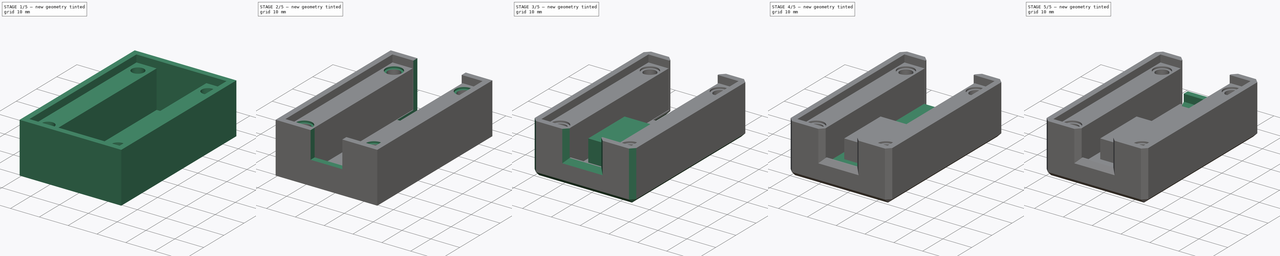
[diagram: build sequence overview — one tinted view per stage of 5, left to right]
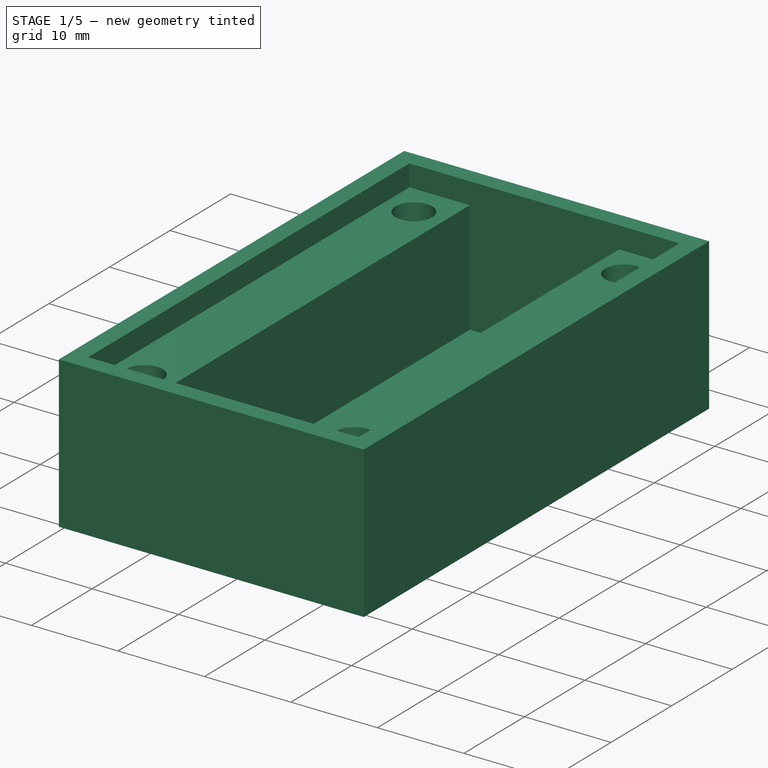
[diagram: stage 1 of 5 — iso view after this stage's code; geometry added in this stage tinted green]
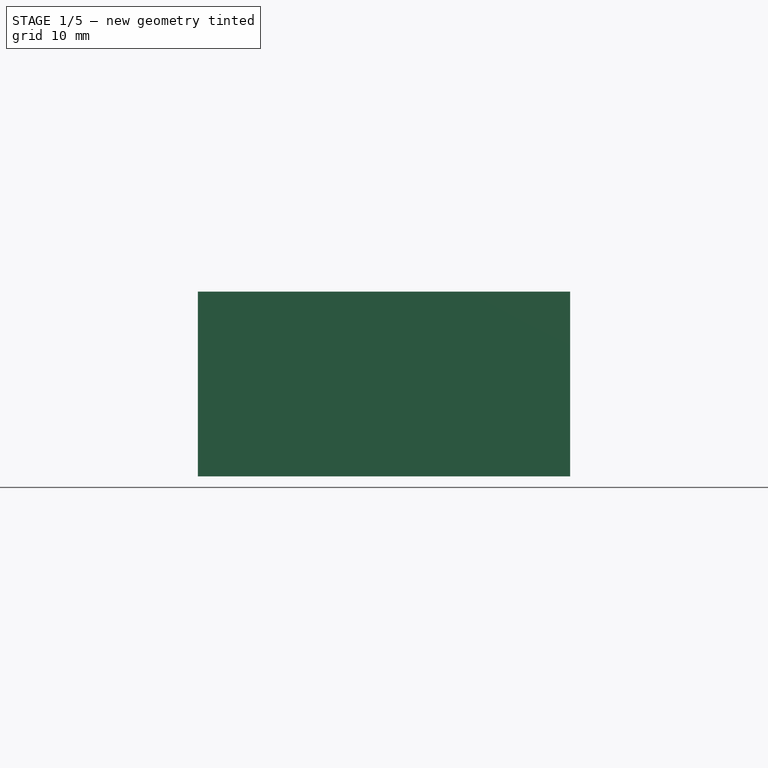
[diagram: stage 1 of 5 — front view after this stage's code; geometry added in this stage tinted green]
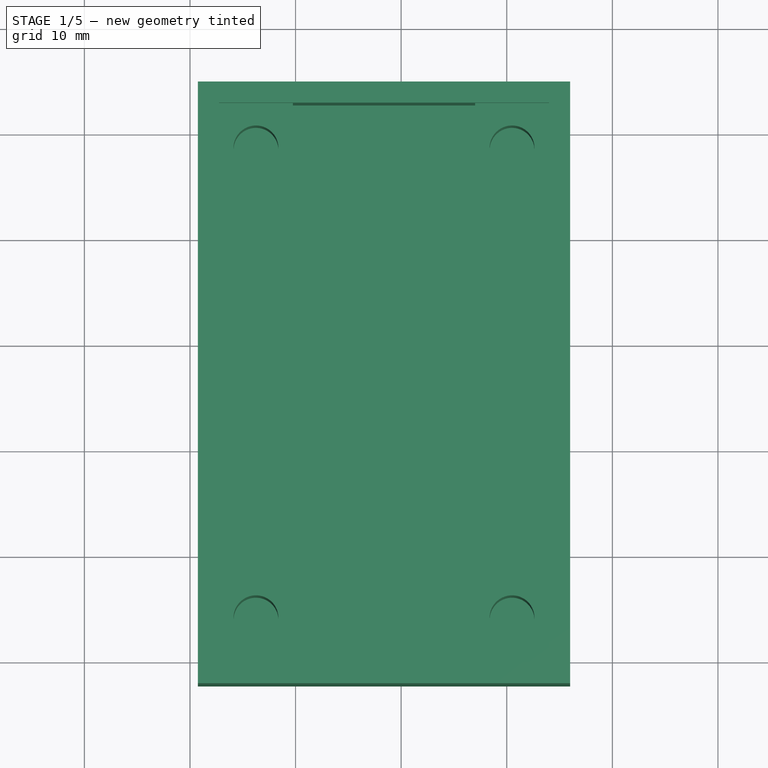
[diagram: stage 1 of 5 — top view after this stage's code; geometry added in this stage tinted green]
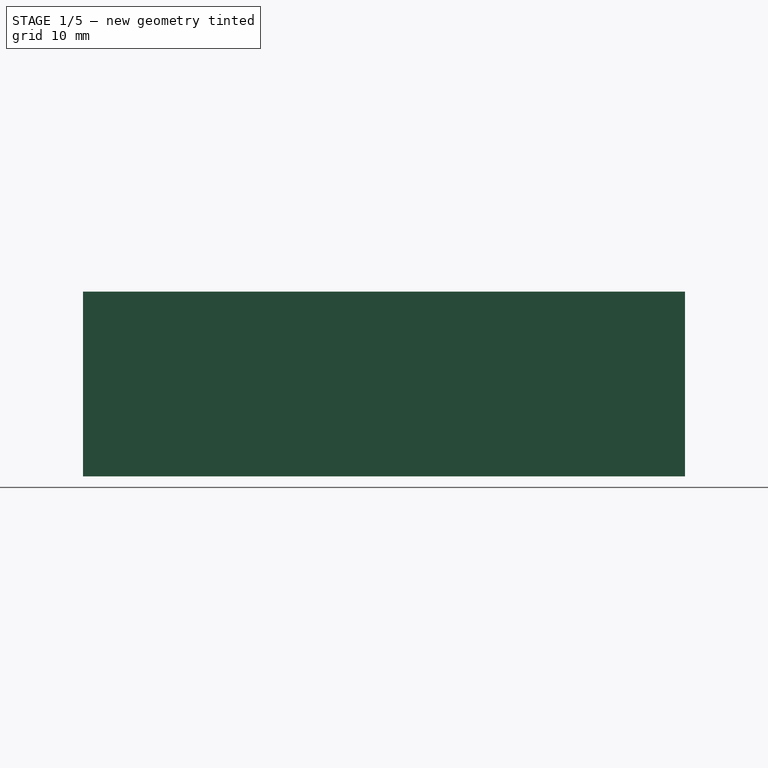
[diagram: stage 1 of 5 — right view after this stage's code; geometry added in this stage tinted green]
FCSTD DOCUMENT  (FreeCAD 1.1R44227 +568 (Git))
Label: enclosure
License: All rights reserved
LicenseURL: http://en.wikipedia.org/wiki/All_rights_reserved
objects: Sketcher::SketchObject×12, PartDesign::Pad×7, PartDesign::Pocket×6, PartDesign::Plane×4, PartDesign::Chamfer×2, App::Point×2, PartDesign::Body×2, Spreadsheet::Sheet×1, PartDesign::Fillet×1, Part::Part2DObjectPython×1
note: 79 computed .brp shape members not serialized (recipe doc carries the construction recipe); baked Part::Feature solids carry a one-line shape summary decoded from their .brp

FEATURE [Spreadsheet::Sheet] Spreadsheet
  cells = A1='board_width; B1(board_width)==16.75 mm; A2='board_length; B2(board_length)==52.5 mm; A3='board_height; B3(board_height)==13 mm; A5='wall_height; B5(wall_height)==board_height + 2 * board_wall_gap + wall_thickness; A6='wall_thickness; B6(wall_thickness)==2 mm; A7='board_wall_gap; B7(board_wall_gap)==0.25 mm; A9='m2.5_insert_od; B9(m2_insert_od)==4.25 mm; A10='m2.5_insert_hat_diameter; B10(m2_insert_hat_diameter)==5.75 mm; A11='m2.5_insert_hat_thickness; B11(m2_insert_hat_thickness)==0.6 mm; A12='standoff_diameter; B12(standoff_diameter)==5.75 mm; A13='standoff_height; B13(standoff_height)==board_height; A14='standoff_inset; B14(standoff_inset)==4 mm; A15='mounting_ledge_width; B15(mounting_ledge_width)==7 mm; A16='m2.5_through_hole_diameter; B16(m2_through_hole_diameter)==3 mm; A18='usb_connector_width; B18(usb_connector_width)==9 mm; A19='usb_window_width; B19(usb_window_width)==11 mm; A20='usb_window_height; B20(usb_window_height)==9.3 mm; C20='bottom of board to top of usb window; A22='can_window_height; B22(can_window_height)==10 mm; A23='can_window_width; B23(can_window_width)==board_width; A25='plinth_width; B25(plinth_width)==board_width - 5 mm; A26='plint_length; B26(plinth_length)==18 mm; A27='plinth_offset; B27(plinth_offset)==9 mm; A28='floor_plinth_height; B28(floor_plinth_height)==1.5 mm; A29='lid_plinth_height; B29(lid_plinth_height)==8.5 mm
FEATURE [Sketcher::SketchObject] Sketch
  ArcFitTolerance = 0
  AttachmentSupport = -> [XY_Plane]
  ExternalTypes = [0]
  FullyConstrained = true
  MakeInternals = false
  MapMode = 5
  _ExternalGeoVersion = 0
  expr: Constraints[17] = Spreadsheet.board_width
  expr: Constraints[18] = Spreadsheet.board_length
  expr: Constraints[19] = Spreadsheet.wall_thickness + Spreadsheet.board_wall_gap + Spreadsheet.mounting_ledge_width
  expr: Constraints[20] = Spreadsheet.wall_thickness + Spreadsheet.board_wall_gap + Spreadsheet.mounting_ledge_width
  expr: Constraints[21] = Spreadsheet.wall_thickness + Spreadsheet.board_wall_gap
  expr: Constraints[22] = Spreadsheet.wall_thickness + Spreadsheet.board_wall_gap
  sketch-geometry (8):
    g0: LineSegment StartX=-9.25 StartY=-2.25 StartZ=0 EndX=26 EndY=-2.25 EndZ=0
    g1: LineSegment StartX=26 StartY=-2.25 StartZ=0 EndX=26 EndY=54.75 EndZ=0
    g2: LineSegment StartX=26 StartY=54.75 StartZ=0 EndX=-9.25 EndY=54.75 EndZ=0
    g3: LineSegment StartX=-9.25 StartY=54.75 StartZ=0 EndX=-9.25 EndY=-2.25 EndZ=0
    g4: LineSegment [constr] StartX=0 StartY=0 StartZ=0 EndX=16.75 EndY=0 EndZ=0
    g5: LineSegment [constr] StartX=16.75 StartY=0 StartZ=0 EndX=16.75 EndY=52.5 EndZ=0
    g6: LineSegment [constr] StartX=16.75 StartY=52.5 StartZ=0 EndX=0 EndY=52.5 EndZ=0
    g7: LineSegment [constr] StartX=0 StartY=52.5 StartZ=0 EndX=0 EndY=0 EndZ=0
  constraints (23):
    c: Coincident(g0,g1)
    c: Coincident(g1,g2)
    c: Coincident(g2,g3)
    c: Coincident(g3,g0)
    c: Horizontal(g0)
    c: Horizontal(g2)
    c: Vertical(g1)
    c: Vertical(g3)
    c: Coincident(g4,g5)
    c: Coincident(g5,g6)
    c: Coincident(g6,g7)
    c: Coincident(g7,g4)
    c: Horizontal(g4)
    c: Horizontal(g6)
    c: Vertical(g5)
    c: Vertical(g7)
    c: Coincident(g4,g-1)
    c: DistanceX(g6,g6) = 16.75
    c: DistanceY(g5,g5) = 52.5
    c: Distance(g0,g7) = 9.25
    c: Distance(g0,g5) = 9.25
    c: Distance(g5,g2) = 2.25
    c: Distance(g4,g0) = 2.25
FEATURE [PartDesign::Pad] Pad  label="top"
  Direction = (0,0,1)
  Length = 2
  Length2 = 100
  Profile = -> Sketch
  Reversed = true
  SideType = 0
  Suppressed = false
  Type = 0
  Type2 = 0
  expr: Length = Spreadsheet.wall_thickness
FEATURE [Sketcher::SketchObject] Sketch001
  ArcFitTolerance = 0
  AttachmentSupport = -> [XY_Plane]
  ExternalTypes = [0]
  FullyConstrained = true
  MakeInternals = false
  MapMode = 5
  _ExternalGeoVersion = 0
  expr: Constraints[10] = Spreadsheet.board_length
  expr: Constraints[27] = Spreadsheet.board_wall_gap + Spreadsheet.mounting_ledge_width
  expr: Constraints[28] = Spreadsheet.board_wall_gap + Spreadsheet.mounting_ledge_width
  expr: Constraints[29] = Spreadsheet.wall_thickness
  expr: Constraints[30] = Spreadsheet.wall_thickness
  expr: Constraints[31] = Spreadsheet.wall_thickness
  expr: Constraints[32] = Spreadsheet.wall_thickness
  expr: Constraints[33] = Spreadsheet.board_wall_gap
  expr: Constraints[34] = Spreadsheet.board_wall_gap
  expr: Constraints[9] = Spreadsheet.board_width
  sketch-geometry (12):
    g0: LineSegment [constr] StartX=0 StartY=0 StartZ=0 EndX=16.75 EndY=0 EndZ=0
    g1: LineSegment [constr] StartX=16.75 StartY=0 StartZ=0 EndX=16.75 EndY=52.5 EndZ=0
    g2: LineSegment [constr] StartX=16.75 StartY=52.5 StartZ=0 EndX=0 EndY=52.5 EndZ=0
    g3: LineSegment [constr] StartX=0 StartY=52.5 StartZ=0 EndX=0 EndY=0 EndZ=0
    g4: LineSegment StartX=-7.25 StartY=-0.25 StartZ=0 EndX=24 EndY=-0.25 EndZ=0
    g5: LineSegment StartX=24 StartY=-0.25 StartZ=0 EndX=24 EndY=52.75 EndZ=0
    g6: LineSegment StartX=24 StartY=52.75 StartZ=0 EndX=-7.25 EndY=52.75 EndZ=0
    g7: LineSegment StartX=-7.25 StartY=52.75 StartZ=0 EndX=-7.25 EndY=-0.25 EndZ=0
    g8: LineSegment StartX=26 StartY=54.75 StartZ=0 EndX=-9.25 EndY=54.75 EndZ=0
    g9: LineSegment StartX=-9.25 StartY=54.75 StartZ=0 EndX=-9.25 EndY=-2.25 EndZ=0
    g10: LineSegment StartX=-9.25 StartY=-2.25 StartZ=0 EndX=26 EndY=-2.25 EndZ=0
    g11: LineSegment StartX=26 StartY=-2.25 StartZ=0 EndX=26 EndY=54.75 EndZ=0
  constraints (35):
    c: Coincident(g0,g1)
    c: Coincident(g1,g2)
    c: Coincident(g2,g3)
    c: Coincident(g3,g0)
    c: Horizontal(g0)
    c: Horizontal(g2)
    c: Vertical(g1)
    c: Vertical(g3)
    c: Coincident(g0,g-1)
    c: DistanceX(g2,g2) = 16.75
    c: DistanceY(g1,g1) = 52.5
    c: Coincident(g4,g5)
    c: Coincident(g5,g6)
    c: Coincident(g6,g7)
    c: Coincident(g7,g4)
    c: Horizontal(g4)
    c: Horizontal(g6)
    c: Vertical(g5)
    c: Vertical(g7)
    c: Coincident(g8,g9)
    c: Coincident(g9,g10)
    c: Coincident(g10,g11)
    c: Coincident(g11,g8)
    c: Horizontal(g8)
    c: Horizontal(g10)
    c: Vertical(g9)
    c: Vertical(g11)
    c: Distance(g4,g3) = 7.25
    c: Distance(g4,g1) = 7.25
    c: Distance(g8,g7) = 2
    c: Distance(g8,g5) = 2
    c: Distance(g9,g4) = 2
    c: Distance(g8,g6) = 2
    c: Distance(g0,g4) = 0.25
    c: Distance(g2,g6) = 0.25
FEATURE [PartDesign::Pad] Pad001  label="walls"
  BaseFeature = -> Pad
  Direction = (0,0,1)
  Length = 15.5
  Length2 = 100
  Profile = -> Sketch001
  SideType = 0
  Suppressed = false
  Type = 0
  Type2 = 0
  expr: Length = Spreadsheet.wall_height
FEATURE [Sketcher::SketchObject] Sketch003
  ArcFitTolerance = 0
  AttachmentSupport = -> [XY_Plane]
  ExternalTypes = [0]
  FullyConstrained = true
  MakeInternals = false
  MapMode = 5
  _ExternalGeoVersion = 0
  expr: Constraints[10] = Spreadsheet.board_width
  expr: Constraints[26] = Spreadsheet.m2_insert_od
  expr: Constraints[27] = Spreadsheet.board_wall_gap + Spreadsheet.mounting_ledge_width / 2
  expr: Constraints[28] = Spreadsheet.board_wall_gap + Spreadsheet.mounting_ledge_width / 2
  expr: Constraints[47] = Spreadsheet.board_length + 2 * Spreadsheet.board_wall_gap
  expr: Constraints[49] = Spreadsheet.board_wall_gap
  expr: Constraints[50] = Spreadsheet.standoff_inset
  expr: Constraints[51] = Spreadsheet.standoff_inset
  expr: Constraints[52] = Spreadsheet.board_wall_gap + Spreadsheet.mounting_ledge_width
  expr: Constraints[53] = Spreadsheet.board_wall_gap
  expr: Constraints[54] = Spreadsheet.board_wall_gap
  expr: Constraints[9] = Spreadsheet.board_length
  sketch-geometry (20):
    g0: LineSegment [constr] StartX=0 StartY=0 StartZ=0 EndX=16.75 EndY=0 EndZ=0
    g1: LineSegment [constr] StartX=16.75 StartY=0 StartZ=0 EndX=16.75 EndY=52.5 EndZ=0
    g2: LineSegment [constr] StartX=16.75 StartY=52.5 StartZ=0 EndX=0 EndY=52.5 EndZ=0
    g3: LineSegment [constr] StartX=0 StartY=52.5 StartZ=0 EndX=0 EndY=0 EndZ=0
    g4: Circle CenterX=-3.75 CenterY=48.5 CenterZ=0 NormalX=0 NormalY=0 NormalZ=1 AngleXU=0 Radius=2.125
    g5: Circle CenterX=20.5 CenterY=48.5 CenterZ=0 NormalX=0 NormalY=0 NormalZ=1 AngleXU=0 Radius=2.125
    g6: Circle CenterX=20.5 CenterY=4 CenterZ=0 NormalX=0 NormalY=0 NormalZ=1 AngleXU=0 Radius=2.125
    g7: Circle CenterX=-3.75 CenterY=4 CenterZ=0 NormalX=0 NormalY=0 NormalZ=1 AngleXU=0 Radius=2.125
    g8: LineSegment [constr] StartX=-3.75 StartY=4 StartZ=0 EndX=20.5 EndY=4 EndZ=0
    g9: LineSegment [constr] StartX=20.5 StartY=4 StartZ=0 EndX=20.5 EndY=48.5 EndZ=0
    g10: LineSegment [constr] StartX=20.5 StartY=48.5 StartZ=0 EndX=-3.75 EndY=48.5 EndZ=0
    g11: LineSegment [constr] StartX=-3.75 StartY=48.5 StartZ=0 EndX=-3.75 EndY=4 EndZ=0
    g12: LineSegment StartX=-7.5 StartY=52.75 StartZ=0 EndX=-0.25 EndY=52.75 EndZ=0
    g13: LineSegment StartX=-0.25 StartY=52.75 StartZ=0 EndX=-0.25 EndY=-0.25 EndZ=0
    g14: LineSegment StartX=-0.25 StartY=-0.25 StartZ=0 EndX=-7.5 EndY=-0.25 EndZ=0
    g15: LineSegment StartX=-7.5 StartY=-0.25 StartZ=0 EndX=-7.5 EndY=52.75 EndZ=0
    g16: LineSegment StartX=17 StartY=-0.25 StartZ=0 EndX=24.25 EndY=-0.25 EndZ=0
    g17: LineSegment StartX=24.25 StartY=-0.25 StartZ=0 EndX=24.25 EndY=52.75 EndZ=0
    g18: LineSegment StartX=24.25 StartY=52.75 StartZ=0 EndX=17 EndY=52.75 EndZ=0
    g19: LineSegment StartX=17 StartY=52.75 StartZ=0 EndX=17 EndY=-0.25 EndZ=0
  constraints (55):
    c: Coincident(g0,g1)
    c: Coincident(g1,g2)
    c: Coincident(g2,g3)
    c: Coincident(g3,g0)
    c: Horizontal(g0)
    c: Horizontal(g2)
    c: Vertical(g1)
    c: Vertical(g3)
    c: Coincident(g0,g-1)
    c: Distance(g3) = 52.5
    c: Distance(g2) = 16.75
    c: Coincident(g8,g9)
    c: Coincident(g9,g10)
    c: Coincident(g10,g11)
    c: Coincident(g11,g8)
    c: Horizontal(g8)
    c: Horizontal(g10)
    c: Vertical(g9)
    c: Vertical(g11)
    c: Coincident(g8,g7)
    c: Coincident(g9,g5)
    c: Coincident(g6,g8)
    c: Coincident(g4,g10)
    c: Equal(g4,g5)
    c: Equal(g5,g6)
    c: Equal(g6,g7)
    c: Diameter(g4) = 4.25
    c: DistanceX(g7,g-1) = 3.75
    c: DistanceX(g0,g6) = 3.75
    c: Coincident(g12,g13)
    c: Coincident(g13,g14)
    c: Coincident(g14,g15)
    c: Coincident(g15,g12)
    c: Horizontal(g12)
    c: Horizontal(g14)
    c: Vertical(g13)
    c: Vertical(g15)
    c: Coincident(g16,g17)
    c: Coincident(g17,g18)
    c: Coincident(g18,g19)
    c: Coincident(g19,g16)
    c: Horizontal(g16)
    c: Horizontal(g18)
    c: Vertical(g17)
    c: Vertical(g19)
    c: Equal(g12,g18)
    c: Equal(g15,g17)
    c: Distance(g17) = 53
    c: Horizontal(g12,g18)
    c: Distance(g12,g2) = 0.25
    c: Distance(g4,g2) = 4
    c: Distance(g7,g0) = 4
    c: Distance(g14,g13) = 7.25
    c: Distance(g12,g3) = 0.25
    c: Distance(g1,g19) = 0.25
FEATURE [PartDesign::Pad] Pad003  label="mounting holes"
  BaseFeature = -> Pad001
  Direction = (0,0,1)
  Length = 13
  Length2 = 100
  Profile = -> Sketch003
  SideType = 0
  Suppressed = false
  Type = 0
  Type2 = 0
  expr: Length = Spreadsheet.standoff_height
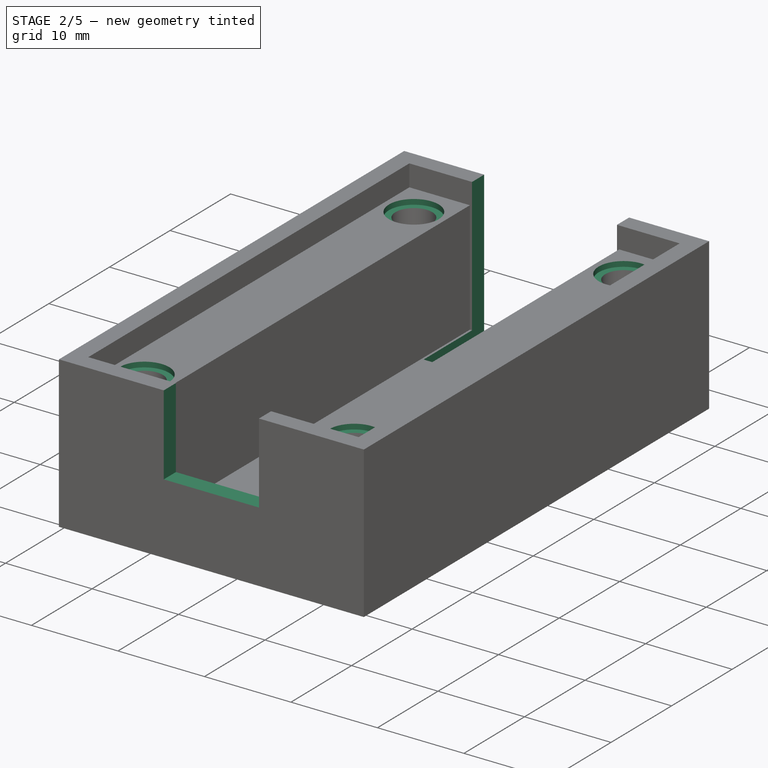
[diagram: stage 2 of 5 — iso view after this stage's code; geometry added in this stage tinted green]
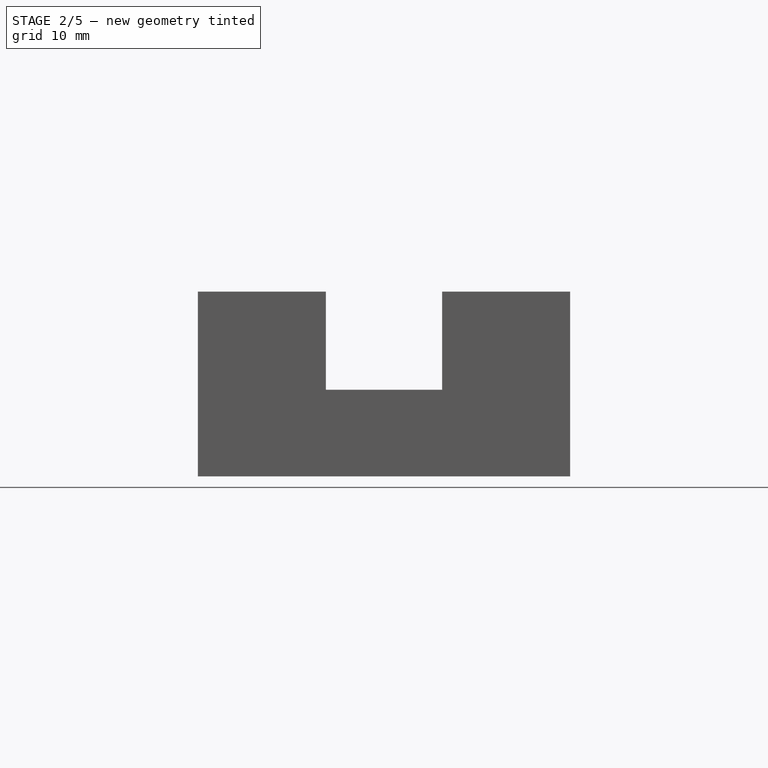
[diagram: stage 2 of 5 — front view after this stage's code; geometry added in this stage tinted green]
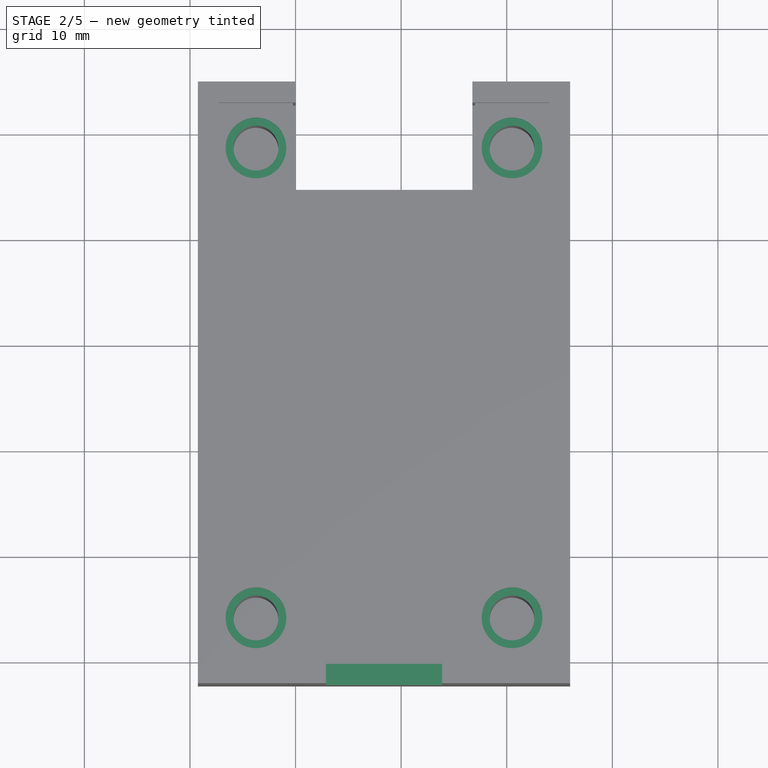
[diagram: stage 2 of 5 — top view after this stage's code; geometry added in this stage tinted green]
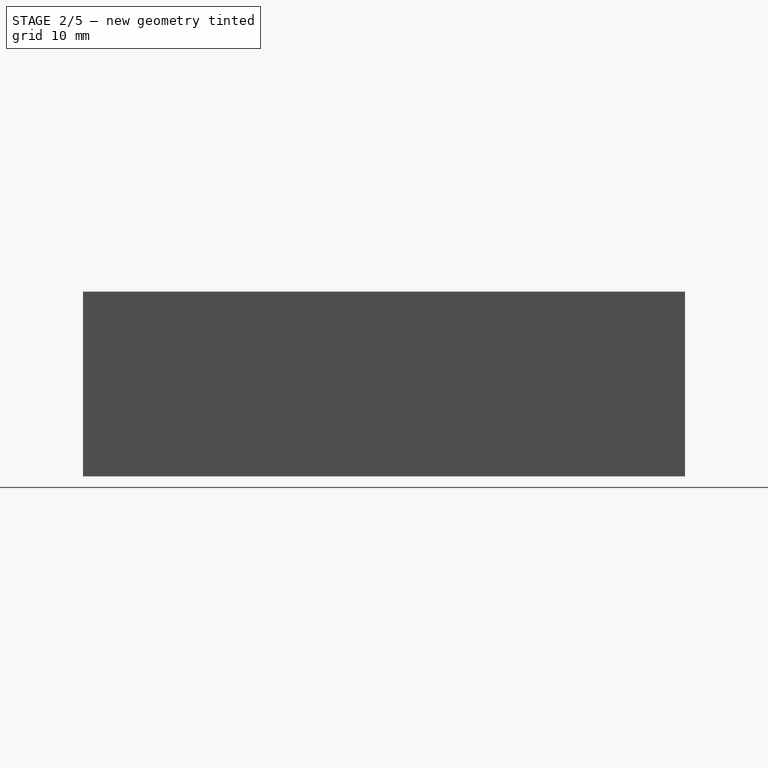
[diagram: stage 2 of 5 — right view after this stage's code; geometry added in this stage tinted green]
FEATURE [PartDesign::Plane] DatumPlane
  AttachmentOffset = pos=(0,0,13) rot=(0,0,1;0rad)
  AttachmentSupport = -> [XY_Plane]
  Length = 63.755
  MapMode = 2
  Placement = pos=(0,0,13) rot=(0,0,1;0rad)
  ResizeMode = 0
  Width = 92.505
  expr: .AttachmentOffset.Base.z = Spreadsheet.standoff_height
FEATURE [Sketcher::SketchObject] Sketch005
  ArcFitTolerance = 0
  AttachmentSupport = -> [DatumPlane]
  ExternalTypes = [0]
  FullyConstrained = true
  MakeInternals = false
  MapMode = 5
  Placement = pos=(0,0,13) rot=(0,0,1;0rad)
  _ExternalGeoVersion = 0
  expr: Constraints[10] = Spreadsheet.board_length
  expr: Constraints[19] = Spreadsheet.board_wall_gap + Spreadsheet.mounting_ledge_width / 2
  expr: Constraints[20] = Spreadsheet.board_wall_gap + Spreadsheet.mounting_ledge_width / 2
  expr: Constraints[21] = Spreadsheet.standoff_inset
  expr: Constraints[22] = Spreadsheet.standoff_inset
  expr: Constraints[30] = Spreadsheet.m2_insert_hat_diameter
  expr: Constraints[9] = Spreadsheet.board_width
  sketch-geometry (12):
    g0: LineSegment [constr] StartX=0 StartY=0 StartZ=0 EndX=16.75 EndY=0 EndZ=0
    g1: LineSegment [constr] StartX=16.75 StartY=0 StartZ=0 EndX=16.75 EndY=52.5 EndZ=0
    g2: LineSegment [constr] StartX=16.75 StartY=52.5 StartZ=0 EndX=0 EndY=52.5 EndZ=0
    g3: LineSegment [constr] StartX=0 StartY=52.5 StartZ=0 EndX=0 EndY=0 EndZ=0
    g4: LineSegment [constr] StartX=-3.75 StartY=4 StartZ=0 EndX=20.5 EndY=4 EndZ=0
    g5: LineSegment [constr] StartX=20.5 StartY=4 StartZ=0 EndX=20.5 EndY=48.5 EndZ=0
    g6: LineSegment [constr] StartX=20.5 StartY=48.5 StartZ=0 EndX=-3.75 EndY=48.5 EndZ=0
    g7: LineSegment [constr] StartX=-3.75 StartY=48.5 StartZ=0 EndX=-3.75 EndY=4 EndZ=0
    g8: Circle CenterX=-3.75 CenterY=48.5 CenterZ=0 NormalX=0 NormalY=0 NormalZ=1 AngleXU=0 Radius=2.875
    g9: Circle CenterX=20.5 CenterY=48.5 CenterZ=0 NormalX=0 NormalY=0 NormalZ=1 AngleXU=0 Radius=2.875
    g10: Circle CenterX=-3.75 CenterY=4 CenterZ=0 NormalX=0 NormalY=0 NormalZ=1 AngleXU=0 Radius=2.875
    g11: Circle CenterX=20.5 CenterY=4 CenterZ=0 NormalX=0 NormalY=0 NormalZ=1 AngleXU=0 Radius=2.875
  constraints (31):
    c: Coincident(g0,g1)
    c: Coincident(g1,g2)
    c: Coincident(g2,g3)
    c: Coincident(g3,g0)
    c: Horizontal(g0)
    c: Horizontal(g2)
    c: Vertical(g1)
    c: Vertical(g3)
    c: Coincident(g0,g-1)
    c: Distance(g2) = 16.75
    c: Distance(g1) = 52.5
    c: Coincident(g4,g5)
    c: Coincident(g5,g6)
    c: Coincident(g6,g7)
    c: Coincident(g7,g4)
    c: Horizontal(g4)
    c: Horizontal(g6)
    c: Vertical(g5)
    c: Vertical(g7)
    c: Distance(g5,g1) = 3.75
    c: Distance(g4,g3) = 3.75
    c: Distance(g4,g0) = 4
    c: Distance(g6,g2) = 4
    c: Coincident(g8,g6)
    c: Coincident(g9,g5)
    c: Coincident(g10,g4)
    c: Coincident(g11,g4)
    c: Equal(g11,g9)
    c: Equal(g9,g8)
    c: Equal(g8,g10)
    c: Diameter(g8) = 5.75
FEATURE [PartDesign::Pocket] Pocket001  label="m2 insert hat depression"
  BaseFeature = -> Pad003
  Direction = (0,0,-1)
  Length = 0.6
  Length2 = 100
  Profile = -> Sketch005
  SideType = 0
  Suppressed = false
  Type = 0
  Type2 = 0
  expr: Length = Spreadsheet.m2_insert_hat_thickness
FEATURE [Sketcher::SketchObject] Sketch006
  ArcFitTolerance = 0
  AttachmentSupport = -> [XZ_Plane]
  ExternalTypes = [0]
  FullyConstrained = true
  MakeInternals = false
  MapMode = 5
  Placement = pos=(0,0,0) rot=(1,0,0;1.5708rad)
  _ExternalGeoVersion = 0
  expr: Constraints[13] = Spreadsheet.usb_window_width
  expr: Constraints[23] = Spreadsheet.board_width
  expr: Constraints[26] = Spreadsheet.wall_height
  expr: Constraints[27] = Spreadsheet.usb_window_height
  sketch-geometry (10):
    g0: LineSegment StartX=2.875 StartY=15.5 StartZ=0 EndX=13.875 EndY=15.5 EndZ=0
    g1: LineSegment StartX=13.875 StartY=15.5 StartZ=0 EndX=13.875 EndY=6.2 EndZ=0
    g2: LineSegment StartX=13.875 StartY=6.2 StartZ=0 EndX=2.875 EndY=6.2 EndZ=0
    g3: LineSegment StartX=2.875 StartY=6.2 StartZ=0 EndX=2.875 EndY=15.5 EndZ=0
    g4: LineSegment [constr] StartX=0 StartY=6.2 StartZ=0 EndX=2.875 EndY=6.2 EndZ=0
    g5: LineSegment [constr] StartX=13.875 StartY=6.2 StartZ=0 EndX=16.75 EndY=6.2 EndZ=0
    g6: LineSegment [constr] StartX=0 StartY=0 StartZ=0 EndX=16.75 EndY=0 EndZ=0
    g7: LineSegment [constr] StartX=16.75 StartY=0 StartZ=0 EndX=16.75 EndY=15.5 EndZ=0
    g8: LineSegment [constr] StartX=16.75 StartY=15.5 StartZ=0 EndX=0 EndY=15.5 EndZ=0
    g9: LineSegment [constr] StartX=0 StartY=15.5 StartZ=0 EndX=0 EndY=0 EndZ=0
  constraints (29):
    c: Coincident(g0,g1)
    c: Coincident(g1,g2)
    c: Coincident(g2,g3)
    c: Coincident(g3,g0)
    c: Horizontal(g0)
    c: Horizontal(g2)
    c: Vertical(g1)
    c: Vertical(g3)
    c: Coincident(g4,g2)
    c: Coincident(g5,g1)
    c: Horizontal(g5)
    c: Horizontal(g4)
    c: Equal(g4,g5)
    c: Distance(g2) = 11
    c: Coincident(g6,g7)
    c: Coincident(g7,g8)
    c: Coincident(g8,g9)
    c: Coincident(g9,g6)
    c: Horizontal(g6)
    c: Horizontal(g8)
    c: Vertical(g7)
    c: Vertical(g9)
    c: Coincident(g6,g-1)
    c: Distance(g6) = 16.75
    c: PointOnObject(g5,g7)
    c: PointOnObject(g4,g9)
    c: Distance(g7) = 15.5
    c: Distance(g1,g8) = 9.3
    c: PointOnObject(g0,g8)
FEATURE [PartDesign::Pocket] Pocket002  label="usb window"
  BaseFeature = -> Pocket001
  Direction = (0,1,-2e-16)
  Length = 5
  Length2 = 100
  Profile = -> Sketch006
  Reversed = true
  SideType = 0
  Suppressed = false
  Type = 1
  Type2 = 0
FEATURE [PartDesign::Plane] DatumPlane001
  AttachmentOffset = pos=(0,0,-52.75) rot=(0,0,1;0rad)
  AttachmentSupport = -> [XZ_Plane]
  Length = 61.0995
  MapMode = 2
  Placement = pos=(0,52.75,-1.17e-14) rot=(1,0,0;1.5708rad)
  ResizeMode = 0
  Width = 60.0995
  expr: .AttachmentOffset.Base.z = -1 * (Spreadsheet.board_length + Spreadsheet.board_wall_gap)
FEATURE [Sketcher::SketchObject] Sketch007
  ArcFitTolerance = 0
  AttachmentSupport = -> [DatumPlane001]
  ExternalTypes = [0]
  FullyConstrained = true
  MakeInternals = false
  MapMode = 5
  Placement = pos=(0,52.75,-1.17e-14) rot=(1,0,0;1.5708rad)
  _ExternalGeoVersion = 0
  expr: Constraints[10] = Spreadsheet.wall_height
  expr: Constraints[23] = Spreadsheet.can_window_width
  expr: Constraints[24] = Spreadsheet.can_window_height + 20 mm
  expr: Constraints[9] = Spreadsheet.board_width
  sketch-geometry (9):
    g0: LineSegment [constr] StartX=0 StartY=0 StartZ=0 EndX=16.75 EndY=0 EndZ=0
    g1: LineSegment [constr] StartX=16.75 StartY=0 StartZ=0 EndX=16.75 EndY=15.5 EndZ=0
    g2: LineSegment [constr] StartX=16.75 StartY=15.5 StartZ=0 EndX=0 EndY=15.5 EndZ=0
    g3: LineSegment [constr] StartX=0 StartY=15.5 StartZ=0 EndX=0 EndY=0 EndZ=0
    g4: LineSegment StartX=2.7e-15 StartY=15.5 StartZ=0 EndX=16.75 EndY=15.5 EndZ=0
    g5: LineSegment StartX=16.75 StartY=15.5 StartZ=0 EndX=16.75 EndY=-14.5 EndZ=0
    g6: LineSegment StartX=16.75 StartY=-14.5 StartZ=0 EndX=3.6e-15 EndY=-14.5 EndZ=0
    g7: LineSegment StartX=2.7e-15 StartY=-14.5 StartZ=0 EndX=2.7e-15 EndY=15.5 EndZ=0
    g8: LineSegment [constr] StartX=0 StartY=-14.5 StartZ=0 EndX=2.7e-15 EndY=-14.5 EndZ=0
  constraints (26):
    c: Coincident(g0,g1)
    c: Coincident(g1,g2)
    c: Coincident(g2,g3)
    c: Coincident(g3,g0)
    c: Horizontal(g0)
    c: Horizontal(g2)
    c: Vertical(g1)
    c: Vertical(g3)
    c: Coincident(g0,g-1)
    c: Distance(g2) = 16.75
    c: Distance(g1) = 15.5
    c: Coincident(g4,g5)
    c: Coincident(g5,g6)
    c: Coincident(g6,g7)
    c: Coincident(g7,g4)
    c: Horizontal(g4)
    c: Horizontal(g6)
    c: Vertical(g5)
    c: Vertical(g7)
    c: PointOnObject(g4,g2)
    c: PointOnObject(g8,g3)
    c: Coincident(g8,g6)
    c: Horizontal(g8)
    c: Distance(g6) = 16.75
    c: Distance(g7) = 30
    c: PointOnObject(g5,g1)
FEATURE [PartDesign::Pocket] Pocket003  label="can window"
  BaseFeature = -> Pocket002
  Direction = (0,1,-2e-16)
  Length = 8
  Length2 = 5
  Profile = -> Sketch007
  ReferenceAxis = -> Sketch007 [N_Axis]
  Reversed = true
  SideType = 1
  Suppressed = false
  Type = 0
  Type2 = 0
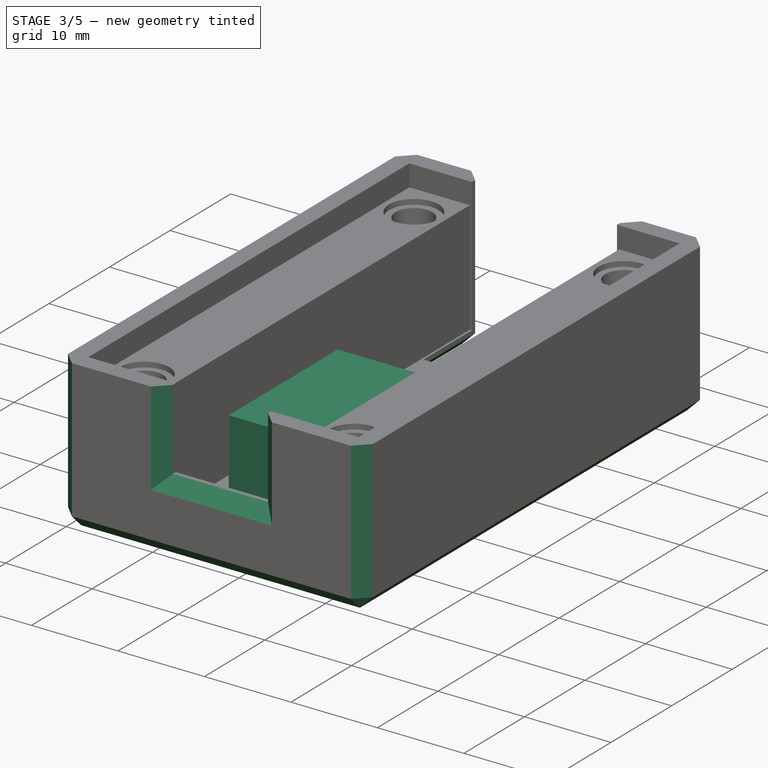
[diagram: stage 3 of 5 — iso view after this stage's code; geometry added in this stage tinted green]
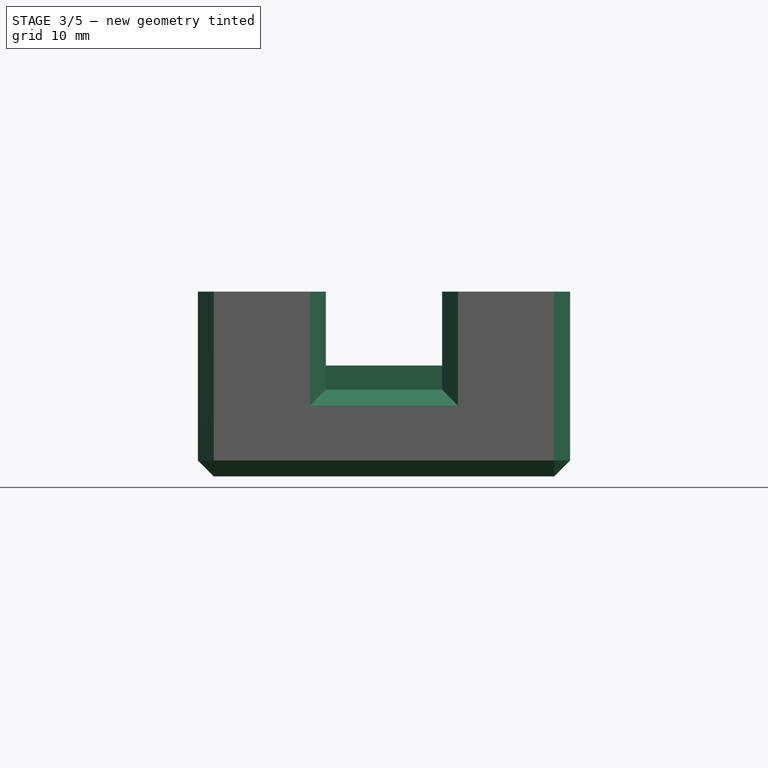
[diagram: stage 3 of 5 — front view after this stage's code; geometry added in this stage tinted green]
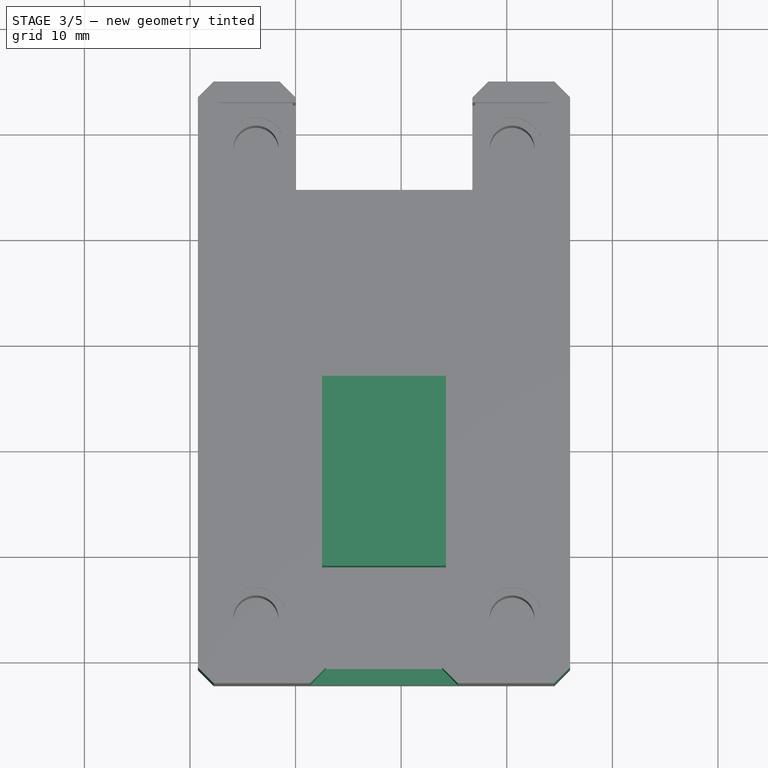
[diagram: stage 3 of 5 — top view after this stage's code; geometry added in this stage tinted green]
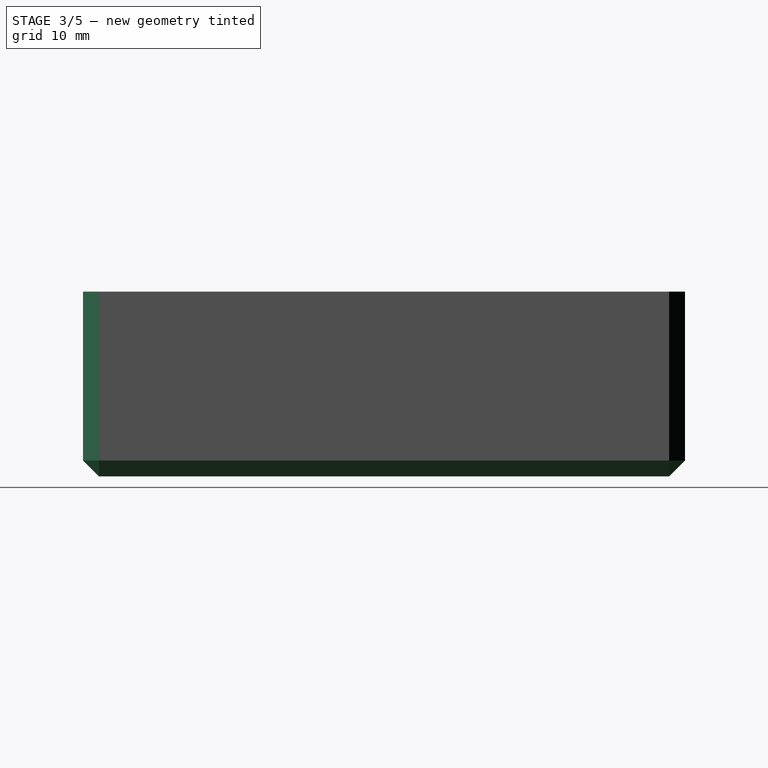
[diagram: stage 3 of 5 — right view after this stage's code; geometry added in this stage tinted green]
FEATURE [Sketcher::SketchObject] Sketch008
  ArcFitTolerance = 0
  AttachmentSupport = -> [XY_Plane]
  ExternalTypes = [0]
  FullyConstrained = true
  MakeInternals = false
  MapMode = 5
  _ExternalGeoVersion = 0
  expr: Constraints[18] = Spreadsheet.board_width
  expr: Constraints[19] = Spreadsheet.board_length
  expr: Constraints[20] = Spreadsheet.plinth_width
  expr: Constraints[28] = Spreadsheet.plinth_length
  expr: Constraints[8] = Spreadsheet.plinth_offset
  sketch-geometry (10):
    g0: LineSegment StartX=2.5 StartY=9 StartZ=0 EndX=14.25 EndY=9 EndZ=0
    g1: LineSegment StartX=14.25 StartY=9 StartZ=0 EndX=14.25 EndY=27 EndZ=0
    g2: LineSegment StartX=14.25 StartY=27 StartZ=0 EndX=2.5 EndY=27 EndZ=0
    g3: LineSegment StartX=2.5 StartY=27 StartZ=0 EndX=2.5 EndY=9 EndZ=0
    g4: LineSegment [constr] StartX=0 StartY=0 StartZ=0 EndX=16.75 EndY=0 EndZ=0
    g5: LineSegment [constr] StartX=16.75 StartY=0 StartZ=0 EndX=16.75 EndY=52.5 EndZ=0
    g6: LineSegment [constr] StartX=16.75 StartY=52.5 StartZ=0 EndX=0 EndY=52.5 EndZ=0
    g7: LineSegment [constr] StartX=0 StartY=52.5 StartZ=0 EndX=0 EndY=0 EndZ=0
    g8: LineSegment [constr] StartX=2.5 StartY=27 StartZ=0 EndX=0 EndY=27 EndZ=0
    g9: LineSegment [constr] StartX=14.25 StartY=27 StartZ=0 EndX=16.75 EndY=27 EndZ=0
  constraints (29):
    c: Coincident(g0,g1)
    c: Coincident(g1,g2)
    c: Coincident(g2,g3)
    c: Coincident(g3,g0)
    c: Horizontal(g0)
    c: Horizontal(g2)
    c: Vertical(g1)
    c: Vertical(g3)
    c: DistanceY(g-1,g0) = 9
    c: Coincident(g4,g5)
    c: Coincident(g5,g6)
    c: Coincident(g6,g7)
    c: Coincident(g7,g4)
    c: Horizontal(g4)
    c: Horizontal(g6)
    c: Vertical(g5)
    c: Vertical(g7)
    c: Coincident(g4,g-1)
    c: Distance(g6) = 16.75
    c: Distance(g5) = 52.5
    c: Distance(g0) = 11.75
    c: Coincident(g8,g2)
    c: PointOnObject(g8,g7)
    c: Horizontal(g8)
    c: Coincident(g9,g1)
    c: PointOnObject(g9,g5)
    c: Horizontal(g9)
    c: Equal(g9,g8)
    c: Distance(g3) = 18
FEATURE [PartDesign::Pad] Pad004  label="plinth"
  BaseFeature = -> Pocket003
  Direction = (0,0,1)
  Length = 8.5
  Length2 = 100
  Profile = -> Sketch008
  ReferenceAxis = -> Sketch008 [N_Axis]
  SideType = 0
  Suppressed = false
  Type = 0
  Type2 = 0
  expr: Length = Spreadsheet.lid_plinth_height
FEATURE [PartDesign::Plane] DatumPlane002
  AttachmentOffset = pos=(0,0,-2) rot=(0,0,1;0rad)
  AttachmentSupport = -> [XY_Plane]
  Length = 63.755
  MapMode = 2
  Placement = pos=(0,0,-2) rot=(0,0,1;0rad)
  ResizeMode = 0
  Width = 92.505
  expr: .AttachmentOffset.Base.z = -Spreadsheet.wall_thickness
FEATURE [Sketcher::SketchObject] Sketch009
  ArcFitTolerance = 0
  AttachmentSupport = -> [DatumPlane002]
  ExternalTypes = [0]
  FullyConstrained = false
  MakeInternals = false
  MapMode = 5
  Placement = pos=(0,0,-2) rot=(0,1,0;3.14159rad)
  _ExternalGeoVersion = 0
  expr: Constraints[10] = Spreadsheet.board_width
  expr: Constraints[9] = Spreadsheet.board_length
  sketch-geometry (118):
    g0: LineSegment [constr] StartX=0 StartY=0 StartZ=0 EndX=-16.75 EndY=0 EndZ=0
    g1: LineSegment [constr] StartX=-16.75 StartY=0 StartZ=0 EndX=-16.75 EndY=52.5 EndZ=0
    g2: LineSegment [constr] StartX=-16.75 StartY=52.5 StartZ=0 EndX=0 EndY=52.5 EndZ=0
    g3: LineSegment [constr] StartX=0 StartY=52.5 StartZ=0 EndX=0 EndY=0 EndZ=0
    g4: BSplineCurve PolesCount=2 KnotsCount=2 Degree=1 IsPeriodic=0
    g5: BSplineCurve PolesCount=2 KnotsCount=2 Degree=1 IsPeriodic=0
    g6: BSplineCurve PolesCount=2 KnotsCount=2 Degree=1 IsPeriodic=0
    g7: BSplineCurve PolesCount=2 KnotsCount=2 Degree=1 IsPeriodic=0
    g8: BSplineCurve PolesCount=2 KnotsCount=2 Degree=1 IsPeriodic=0
    g9: BSplineCurve PolesCount=2 KnotsCount=2 Degree=1 IsPeriodic=0
    g10: BSplineCurve PolesCount=2 KnotsCount=2 Degree=1 IsPeriodic=0
    g11: BSplineCurve PolesCount=2 KnotsCount=2 Degree=1 IsPeriodic=0
    g12: BSplineCurve PolesCount=2 KnotsCount=2 Degree=1 IsPeriodic=0
    g13: BSplineCurve PolesCount=2 KnotsCount=2 Degree=1 IsPeriodic=0
    g14: BSplineCurve PolesCount=2 KnotsCount=2 Degree=1 IsPeriodic=0
    g15: BSplineCurve PolesCount=2 KnotsCount=2 Degree=1 IsPeriodic=0
    g16: BSplineCurve PolesCount=2 KnotsCount=2 Degree=1 IsPeriodic=0
    g17: BSplineCurve PolesCount=4 KnotsCount=2 Degree=3 IsPeriodic=0
    g18: BSplineCurve PolesCount=4 KnotsCount=2 Degree=3 IsPeriodic=0
    g19: BSplineCurve PolesCount=2 KnotsCount=2 Degree=1 IsPeriodic=0
    g20: BSplineCurve PolesCount=4 KnotsCount=2 Degree=3 IsPeriodic=0
    g21: BSplineCurve PolesCount=4 KnotsCount=2 Degree=3 IsPeriodic=0
    g22: BSplineCurve PolesCount=2 KnotsCount=2 Degree=1 IsPeriodic=0
    g23: BSplineCurve PolesCount=4 KnotsCount=2 Degree=3 IsPeriodic=0
    g24: BSplineCurve PolesCount=2 KnotsCount=2 Degree=1 IsPeriodic=0
    g25: BSplineCurve PolesCount=2 KnotsCount=2 Degree=1 IsPeriodic=0
    g26: BSplineCurve PolesCount=2 KnotsCount=2 Degree=1 IsPeriodic=0
    g27: BSplineCurve PolesCount=4 KnotsCount=2 Degree=3 IsPeriodic=0
    g28: BSplineCurve PolesCount=2 KnotsCount=2 Degree=1 IsPeriodic=0
    g29: BSplineCurve PolesCount=4 KnotsCount=2 Degree=3 IsPeriodic=0
    g30: BSplineCurve PolesCount=4 KnotsCount=2 Degree=3 IsPeriodic=0
    g31: BSplineCurve PolesCount=2 KnotsCount=2 Degree=1 IsPeriodic=0
    g32: BSplineCurve PolesCount=4 KnotsCount=2 Degree=3 IsPeriodic=0
    g33: BSplineCurve PolesCount=4 KnotsCount=2 Degree=3 IsPeriodic=0
    g34: BSplineCurve PolesCount=2 KnotsCount=2 Degree=1 IsPeriodic=0
    g35: BSplineCurve PolesCount=4 KnotsCount=2 Degree=3 IsPeriodic=0
    g36: BSplineCurve PolesCount=2 KnotsCount=2 Degree=1 IsPeriodic=0
    g37: BSplineCurve PolesCount=2 KnotsCount=2 Degree=1 IsPeriodic=0
    g38: BSplineCurve PolesCount=2 KnotsCount=2 Degree=1 IsPeriodic=0
    g39: BSplineCurve PolesCount=4 KnotsCount=2 Degree=3 IsPeriodic=0
    g40: BSplineCurve PolesCount=2 KnotsCount=2 Degree=1 IsPeriodic=0
    g41: BSplineCurve PolesCount=4 KnotsCount=2 Degree=3 IsPeriodic=0
    g42: BSplineCurve PolesCount=4 KnotsCount=2 Degree=3 IsPeriodic=0
    g43: BSplineCurve PolesCount=2 KnotsCount=2 Degree=1 IsPeriodic=0
    g44: BSplineCurve PolesCount=4 KnotsCount=2 Degree=3 IsPeriodic=0
    g45: BSplineCurve PolesCount=2 KnotsCount=2 Degree=1 IsPeriodic=0
    g46: BSplineCurve PolesCount=2 KnotsCount=2 Degree=1 IsPeriodic=0
    g47: BSplineCurve PolesCount=2 KnotsCount=2 Degree=1 IsPeriodic=0
    g48: BSplineCurve PolesCount=4 KnotsCount=2 Degree=3 IsPeriodic=0
    g49: BSplineCurve PolesCount=2 KnotsCount=2 Degree=1 IsPeriodic=0
    g50: BSplineCurve PolesCount=4 KnotsCount=2 Degree=3 IsPeriodic=0
    g51: BSplineCurve PolesCount=4 KnotsCount=2 Degree=3 IsPeriodic=0
    g52: BSplineCurve PolesCount=2 KnotsCount=2 Degree=1 IsPeriodic=0
    g53: BSplineCurve PolesCount=2 KnotsCount=2 Degree=1 IsPeriodic=0
    g54: BSplineCurve PolesCount=2 KnotsCount=2 Degree=1 IsPeriodic=0
    g55: BSplineCurve PolesCount=2 KnotsCount=2 Degree=1 IsPeriodic=0
    g56: BSplineCurve PolesCount=2 KnotsCount=2 Degree=1 IsPeriodic=0
    g57: BSplineCurve PolesCount=2 KnotsCount=2 Degree=1 IsPeriodic=0
    g58: BSplineCurve PolesCount=2 KnotsCount=2 Degree=1 IsPeriodic=0
    g59: BSplineCurve PolesCount=2 KnotsCount=2 Degree=1 IsPeriodic=0
    g60: BSplineCurve PolesCount=2 KnotsCount=2 Degree=1 IsPeriodic=0
    g61: BSplineCurve PolesCount=2 KnotsCount=2 Degree=1 IsPeriodic=0
    g62: BSplineCurve PolesCount=2 KnotsCount=2 Degree=1 IsPeriodic=0
    g63: BSplineCurve PolesCount=4 KnotsCount=2 Degree=3 IsPeriodic=0
    g64: BSplineCurve PolesCount=4 KnotsCount=2 Degree=3 IsPeriodic=0
    g65: BSplineCurve PolesCount=2 KnotsCount=2 Degree=1 IsPeriodic=0
    g66: BSplineCurve PolesCount=4 KnotsCount=2 Degree=3 IsPeriodic=0
    g67: BSplineCurve PolesCount=2 KnotsCount=2 Degree=1 IsPeriodic=0
    g68: BSplineCurve PolesCount=4 KnotsCount=2 Degree=3 IsPeriodic=0
    g69: BSplineCurve PolesCount=4 KnotsCount=2 Degree=3 IsPeriodic=0
    g70: BSplineCurve PolesCount=2 KnotsCount=2 Degree=1 IsPeriodic=0
    g71: BSplineCurve PolesCount=4 KnotsCount=2 Degree=3 IsPeriodic=0
    g72: BSplineCurve PolesCount=4 KnotsCount=2 Degree=3 IsPeriodic=0
    g73: BSplineCurve PolesCount=2 KnotsCount=2 Degree=1 IsPeriodic=0
    g74: BSplineCurve PolesCount=4 KnotsCount=2 Degree=3 IsPeriodic=0
    g75: BSplineCurve PolesCount=2 KnotsCount=2 Degree=1 IsPeriodic=0
    g76: BSplineCurve PolesCount=4 KnotsCount=2 Degree=3 IsPeriodic=0
    g77: BSplineCurve PolesCount=4 KnotsCount=2 Degree=3 IsPeriodic=0
    g78: BSplineCurve PolesCount=2 KnotsCount=2 Degree=1 IsPeriodic=0
    g79: BSplineCurve PolesCount=4 KnotsCount=2 Degree=3 IsPeriodic=0
    g80: BSplineCurve PolesCount=2 KnotsCount=2 Degree=1 IsPeriodic=0
    g81: BSplineCurve PolesCount=4 KnotsCount=2 Degree=3 IsPeriodic=0
    g82: BSplineCurve PolesCount=2 KnotsCount=2 Degree=1 IsPeriodic=0
    g83: BSplineCurve PolesCount=2 KnotsCount=2 Degree=1 IsPeriodic=0
    g84: BSplineCurve PolesCount=4 KnotsCount=2 Degree=3 IsPeriodic=0
    g85: BSplineCurve PolesCount=2 KnotsCount=2 Degree=1 IsPeriodic=0
    g86: BSplineCurve PolesCount=4 KnotsCount=2 Degree=3 IsPeriodic=0
    g87: BSplineCurve PolesCount=2 KnotsCount=2 Degree=1 IsPeriodic=0
    g88: BSplineCurve PolesCount=4 KnotsCount=2 Degree=3 IsPeriodic=0
    g89: BSplineCurve PolesCount=2 KnotsCount=2 Degree=1 IsPeriodic=0
    g90: BSplineCurve PolesCount=4 KnotsCount=2 Degree=3 IsPeriodic=0
    g91: BSplineCurve PolesCount=2 KnotsCount=2 Degree=1 IsPeriodic=0
    g92: BSplineCurve PolesCount=2 KnotsCount=2 Degree=1 IsPeriodic=0
    g93: BSplineCurve PolesCount=4 KnotsCount=2 Degree=3 IsPeriodic=0
    g94: BSplineCurve PolesCount=2 KnotsCount=2 Degree=1 IsPeriodic=0
    g95: BSplineCurve PolesCount=4 KnotsCount=2 Degree=3 IsPeriodic=0
    g96: BSplineCurve PolesCount=2 KnotsCount=2 Degree=1 IsPeriodic=0
    g97: BSplineCurve PolesCount=4 KnotsCount=2 Degree=3 IsPeriodic=0
    g98: BSplineCurve PolesCount=2 KnotsCount=2 Degree=1 IsPeriodic=0
    g99: BSplineCurve PolesCount=4 KnotsCount=2 Degree=3 IsPeriodic=0
    g100: BSplineCurve PolesCount=2 KnotsCount=2 Degree=1 IsPeriodic=0
    g101: BSplineCurve PolesCount=4 KnotsCount=2 Degree=3 IsPeriodic=0
    g102: BSplineCurve PolesCount=2 KnotsCount=2 Degree=1 IsPeriodic=0
    g103: BSplineCurve PolesCount=4 KnotsCount=2 Degree=3 IsPeriodic=0
    g104: BSplineCurve PolesCount=2 KnotsCount=2 Degree=1 IsPeriodic=0
    g105: BSplineCurve PolesCount=4 KnotsCount=2 Degree=3 IsPeriodic=0
    g106: BSplineCurve PolesCount=4 KnotsCount=2 Degree=3 IsPeriodic=0
    g107: BSplineCurve PolesCount=2 KnotsCount=2 Degree=1 IsPeriodic=0
    g108: BSplineCurve PolesCount=4 KnotsCount=2 Degree=3 IsPeriodic=0
    g109: BSplineCurve PolesCount=2 KnotsCount=2 Degree=1 IsPeriodic=0
    g110: BSplineCurve PolesCount=2 KnotsCount=2 Degree=1 IsPeriodic=0
    g111: BSplineCurve PolesCount=2 KnotsCount=2 Degree=1 IsPeriodic=0
    g112: BSplineCurve PolesCount=2 KnotsCount=2 Degree=1 IsPeriodic=0
    g113: BSplineCurve PolesCount=2 KnotsCount=2 Degree=1 IsPeriodic=0
    g114: BSplineCurve PolesCount=2 KnotsCount=2 Degree=1 IsPeriodic=0
    g115: BSplineCurve PolesCount=2 KnotsCount=2 Degree=1 IsPeriodic=0
    g116: BSplineCurve PolesCount=2 KnotsCount=2 Degree=1 IsPeriodic=0
    g117: BSplineCurve PolesCount=2 KnotsCount=2 Degree=1 IsPeriodic=0
  constraints (125):
    c: Coincident(g0,g1)
    c: Coincident(g1,g2)
    c: Coincident(g2,g3)
    c: Coincident(g3,g0)
    c: Horizontal(g0)
    c: Horizontal(g2)
    c: Vertical(g1)
    c: Vertical(g3)
    c: Coincident(g0,g-1)
    c: Distance(g1) = 52.5
    c: Distance(g2) = 16.75
    c: Coincident(g4,g5)
    c: Coincident(g5,g6)
    c: Coincident(g6,g7)
    c: Coincident(g7,g8)
    c: Coincident(g8,g9)
    c: Coincident(g9,g10)
    c: Coincident(g10,g11)
    c: Coincident(g11,g12)
    c: Coincident(g12,g13)
    c: Coincident(g13,g14)
    c: Coincident(g14,g15)
    c: Coincident(g15,g4)
    c: Coincident(g16,g17)
    c: Coincident(g17,g18)
    c: Coincident(g18,g19)
    c: Coincident(g19,g20)
    c: Coincident(g20,g21)
    c: Coincident(g21,g22)
    c: Coincident(g22,g23)
    c: Coincident(g23,g24)
    c: Coincident(g24,g25)
    c: Coincident(g25,g26)
    c: Coincident(g26,g27)
    c: Coincident(g27,g28)
    c: Coincident(g28,g29)
    c: Coincident(g29,g30)
    c: Coincident(g30,g31)
    c: Coincident(g31,g32)
    c: Coincident(g32,g33)
    c: Coincident(g33,g34)
    c: Coincident(g34,g35)
    c: Coincident(g35,g36)
    c: Coincident(g36,g37)
    c: Coincident(g37,g38)
    c: Coincident(g38,g39)
    c: Coincident(g39,g16)
    c: Coincident(g40,g41)
    c: Coincident(g41,g42)
    c: Coincident(g42,g43)
    c: Coincident(g43,g44)
    c: Coincident(g44,g45)
    c: Coincident(g45,g46)
    c: Coincident(g46,g47)
    c: Coincident(g47,g48)
    c: Coincident(g48,g49)
    c: Coincident(g49,g50)
    c: Coincident(g50,g51)
    c: Coincident(g51,g52)
    c: Coincident(g52,g53)
    c: Coincident(g53,g40)
    c: Coincident(g54,g55)
    c: Coincident(g55,g56)
    c: Coincident(g56,g57)
    c: Coincident(g57,g58)
    c: Coincident(g58,g59)
    c: Coincident(g59,g60)
    c: Coincident(g60,g61)
    c: Coincident(g61,g54)
    c: Coincident(g62,g63)
    c: Coincident(g63,g64)
    c: Coincident(g64,g65)
    c: Coincident(g65,g66)
    c: Coincident(g66,g67)
    c: Coincident(g67,g68)
    c: Coincident(g68,g69)
    c: Coincident(g69,g70)
    c: Coincident(g70,g71)
    c: Coincident(g71,g72)
    c: Coincident(g72,g73)
    c: Coincident(g73,g74)
    c: Coincident(g74,g75)
    c: Coincident(g75,g76)
    c: Coincident(g76,g77)
    c: Coincident(g77,g78)
    c: Coincident(g78,g79)
    c: Coincident(g79,g80)
    c: Coincident(g80,g81)
    c: Coincident(g81,g82)
    c: Coincident(g82,g83)
    c: Coincident(g83,g84)
    c: Coincident(g84,g85)
    c: Coincident(g85,g86)
    c: Coincident(g86,g87)
    c: Coincident(g87,g88)
    c: Coincident(g88,g89)
    c: Coincident(g89,g90)
    c: Coincident(g90,g91)
    c: Coincident(g91,g92)
    c: Coincident(g92,g93)
    c: Coincident(g93,g94)
    c: Coincident(g94,g95)
    c: Coincident(g95,g96)
    c: Coincident(g96,g97)
    c: Coincident(g97,g98)
    c: Coincident(g98,g99)
    c: Coincident(g99,g100)
    c: Coincident(g100,g101)
    c: Coincident(g101,g102)
    c: Coincident(g102,g103)
    c: Coincident(g103,g104)
    c: Coincident(g104,g105)
    c: Coincident(g105,g106)
    c: Coincident(g106,g107)
    c: Coincident(g107,g108)
    c: Coincident(g108,g62)
    c: Coincident(g109,g110)
    c: Coincident(g110,g111)
    c: Coincident(g111,g112)
    c: Coincident(g112,g113)
    c: Coincident(g113,g114)
    c: Coincident(g114,g115)
    c: Coincident(g115,g116)
    c: Coincident(g116,g117)
    c: Coincident(g117,g109)
FEATURE [PartDesign::Pocket] Pocket004  label="scythe"
  BaseFeature = -> Pad004
  Direction = (0,0,1)
  Length = 0.5
  Length2 = 100
  Profile = -> Sketch009
  SideType = 0
  Suppressed = false
  Type = 0
  Type2 = 0
FEATURE [PartDesign::Chamfer] Chamfer
  Angle = 45
  Base = -> Pocket004 [Edge165,Edge138,Edge19,Edge20,Edge22,Edge142,Edge170,Edge21,Edge10,Edge8,Edge143,Edge2,Edge11,Edge13,Edge14,Edge15,Edge17,Edge1,Edge4,Edge7,Edge139,Edge5,Edge18]
  BaseFeature = -> Pocket004
  ChamferType = 0
  FlipDirection = false
  Size = 1.5
  Size2 = 1
  SupportTransform = false
  Suppressed = false
  UseAllEdges = false
FEATURE [PartDesign::Body] Body001  label="floor"
  AllowCompound = false
  Group = -> [Sketch002,Pad002,Sketch004,Pocket,DatumPlane003,Sketch010,Pad005,Sketch011,Pad006,Fillet,Chamfer001]
  Origin = -> Origin001
  Placement = pos=(0,0,2) rot=(0,0,1;0rad)
  Tip = -> Chamfer001
  expr: .Placement.Base.z = Spreadsheet.wall_thickness
FEATURE [Part::Part2DObjectPython] ShapeString  label="ShapeString002"  # Draft 2D object (typed FeaturePython)
  AttachmentSupport = -> [DatumPlane002]
  FontFile = <path>
  Fuse = false
  Justification = 6
  JustificationReference = 0
  KeepLeftMargin = false
  MakeFace = true
  ObliqueAngle = 0
  Placement = pos=(0.8,42.3,-2) rot=(1,0,0;3.14159rad)
  ScaleToSize = true
  Size = 3
  String = T L H G
  Tracking = 0
FEATURE [PartDesign::Pocket] Pocket005  label="TLHG"
  BaseFeature = -> Chamfer
  Direction = (0,0,1)
  Length = 0.5
  Length2 = 5
  Profile = -> ShapeString
  ReferenceAxis = -> ShapeString [N_Axis]
  Refine = true
  SideType = 0
  Suppressed = false
  Type = 0
  Type2 = 0
FEATURE [PartDesign::Body] Body  label="lid"
  AllowCompound = false
  Group = -> [Sketch,Pad,Sketch001,Pad001,Sketch003,Pad003,DatumPlane,Sketch005,Pocket001,Sketch006,Pocket002,DatumPlane001,Sketch007,Pocket003,Sketch008,Pad004,DatumPlane002,Sketch009,Pocket004,Chamfer,ShapeString,Pocket005]
  Origin = -> Origin
  Placement = pos=(16.75,0,17.5) rot=(0,1,0;3.14159rad)
  Tip = -> Pocket005
  expr: .Placement.Base.x = Spreadsheet.board_width
  expr: .Placement.Base.z = Spreadsheet.wall_height + Spreadsheet.wall_thickness
note: 1 file-system path scrubbed to <path> (originals preserved in the JSON sidecar)
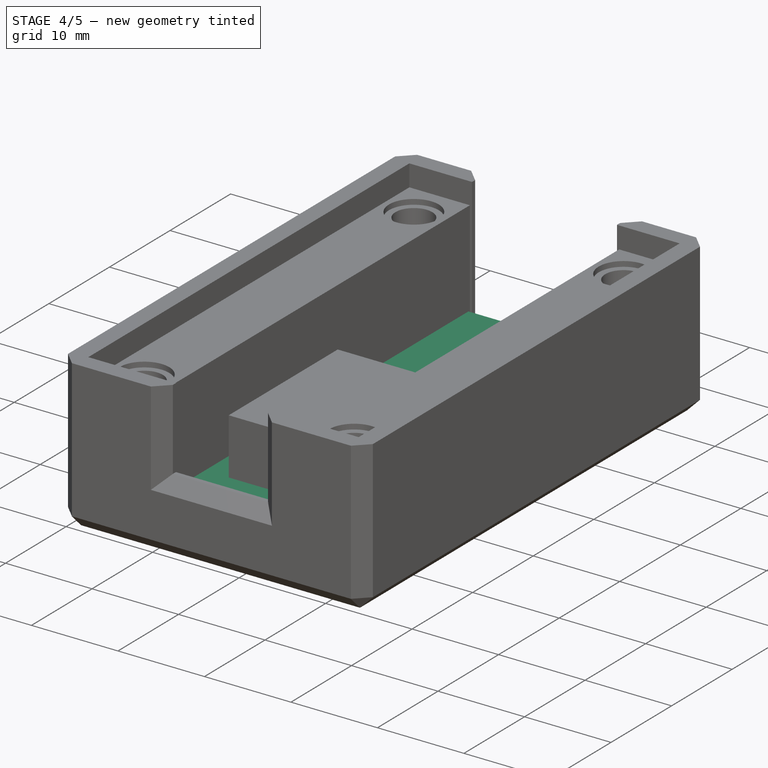
[diagram: stage 4 of 5 — iso view after this stage's code; geometry added in this stage tinted green]
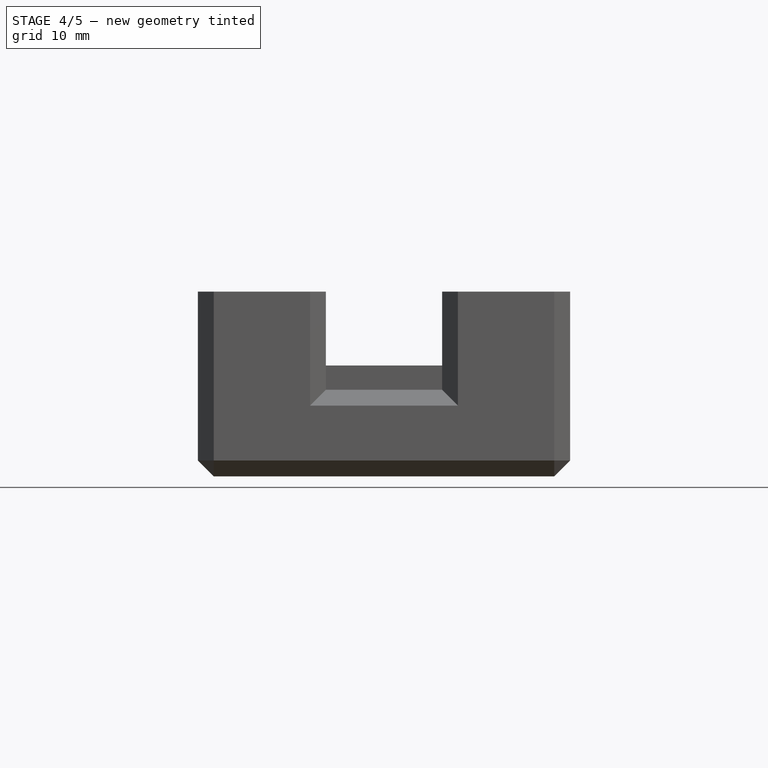
[diagram: stage 4 of 5 — front view after this stage's code; geometry added in this stage tinted green]
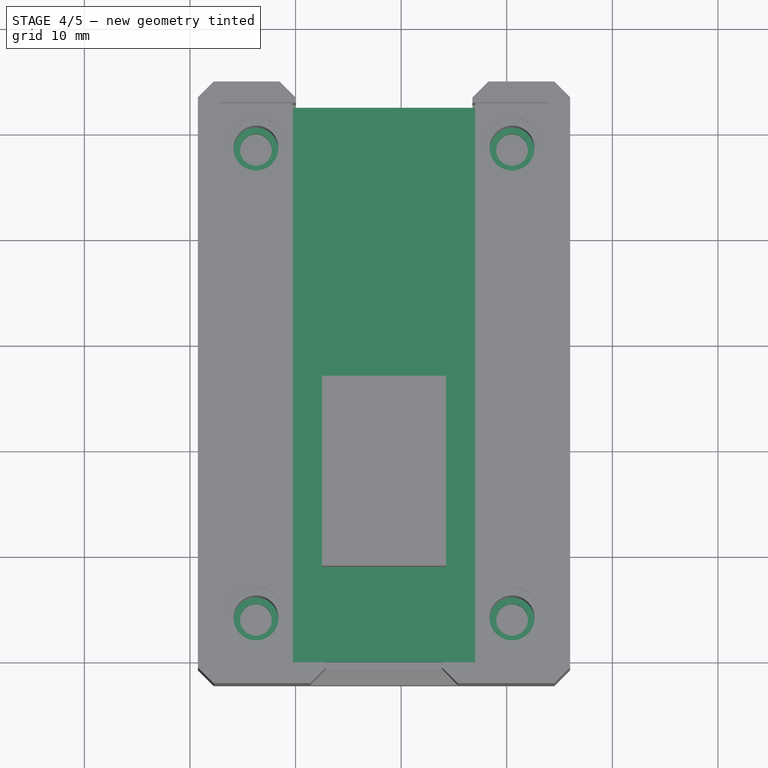
[diagram: stage 4 of 5 — top view after this stage's code; geometry added in this stage tinted green]
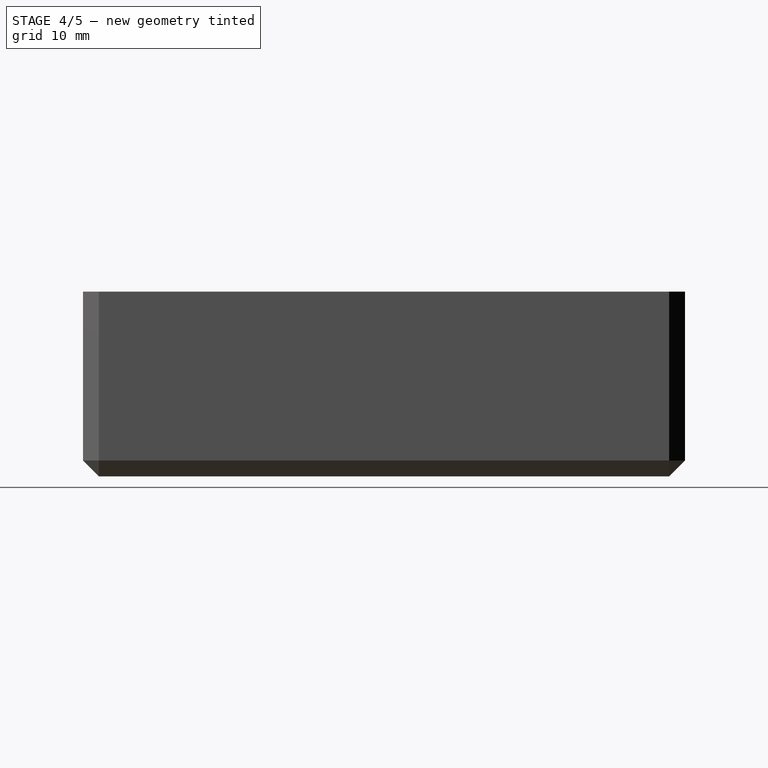
[diagram: stage 4 of 5 — right view after this stage's code; geometry added in this stage tinted green]
FEATURE [Sketcher::SketchObject] Sketch002
  ArcFitTolerance = 0
  AttachmentSupport = -> [XY_Plane001]
  ExternalTypes = [0]
  FullyConstrained = true
  MakeInternals = false
  MapMode = 5
  _ExternalGeoVersion = 0
  expr: Constraints[10] = Spreadsheet.board_length
  expr: Constraints[20] = Spreadsheet.mounting_ledge_width
  expr: Constraints[21] = Spreadsheet.mounting_ledge_width
  expr: Constraints[9] = Spreadsheet.board_width
  sketch-geometry (8):
    g0: LineSegment [constr] StartX=0 StartY=0 StartZ=0 EndX=16.75 EndY=0 EndZ=0
    g1: LineSegment [constr] StartX=16.75 StartY=0 StartZ=0 EndX=16.75 EndY=52.5 EndZ=0
    g2: LineSegment [constr] StartX=16.75 StartY=52.5 StartZ=0 EndX=0 EndY=52.5 EndZ=0
    g3: LineSegment [constr] StartX=0 StartY=52.5 StartZ=0 EndX=0 EndY=0 EndZ=0
    g4: LineSegment StartX=-7 StartY=52.5 StartZ=0 EndX=23.75 EndY=52.5 EndZ=0
    g5: LineSegment StartX=23.75 StartY=52.5 StartZ=0 EndX=23.75 EndY=0 EndZ=0
    g6: LineSegment StartX=23.75 StartY=0 StartZ=0 EndX=-7 EndY=0 EndZ=0
    g7: LineSegment StartX=-7 StartY=0 StartZ=0 EndX=-7 EndY=52.5 EndZ=0
  constraints (23):
    c: Coincident(g0,g1)
    c: Coincident(g1,g2)
    c: Coincident(g2,g3)
    c: Coincident(g3,g0)
    c: Horizontal(g0)
    c: Horizontal(g2)
    c: Vertical(g1)
    c: Vertical(g3)
    c: Coincident(g0,g-1)
    c: Distance(g2) = 16.75
    c: Distance(g1) = 52.5
    c: Coincident(g4,g5)
    c: Coincident(g5,g6)
    c: Coincident(g6,g7)
    c: Coincident(g7,g4)
    c: Horizontal(g4)
    c: Horizontal(g6)
    c: Vertical(g5)
    c: Vertical(g7)
    c: PointOnObject(g5,g-1)
    c: Distance(g6,g3) = 7
    c: Distance(g5,g1) = 7
    c: PointOnObject(g4,g2)
FEATURE [PartDesign::Pad] Pad002
  Direction = (0,0,1)
  Length = 2
  Length2 = 100
  Profile = -> Sketch002
  SideType = 0
  Suppressed = false
  Type = 0
  Type2 = 0
  expr: Length = Spreadsheet.wall_thickness
FEATURE [Sketcher::SketchObject] Sketch004
  ArcFitTolerance = 0
  AttachmentSupport = -> [XY_Plane001]
  ExternalTypes = [0]
  FullyConstrained = true
  MakeInternals = false
  MapMode = 5
  _ExternalGeoVersion = 0
  expr: Constraints[10] = Spreadsheet.board_length
  expr: Constraints[19] = Spreadsheet.board_wall_gap + Spreadsheet.mounting_ledge_width / 2
  expr: Constraints[20] = Spreadsheet.board_wall_gap + Spreadsheet.mounting_ledge_width / 2
  expr: Constraints[21] = Spreadsheet.standoff_inset
  expr: Constraints[22] = Spreadsheet.standoff_inset
  expr: Constraints[27] = Spreadsheet.m2_through_hole_diameter
  expr: Constraints[9] = Spreadsheet.board_width
  sketch-geometry (12):
    g0: LineSegment [constr] StartX=0 StartY=0 StartZ=0 EndX=16.75 EndY=0 EndZ=0
    g1: LineSegment [constr] StartX=16.75 StartY=0 StartZ=0 EndX=16.75 EndY=52.5 EndZ=0
    g2: LineSegment [constr] StartX=16.75 StartY=52.5 StartZ=0 EndX=0 EndY=52.5 EndZ=0
    g3: LineSegment [constr] StartX=0 StartY=52.5 StartZ=0 EndX=0 EndY=0 EndZ=0
    g4: LineSegment [constr] StartX=-3.75 StartY=4 StartZ=0 EndX=20.5 EndY=4 EndZ=0
    g5: LineSegment [constr] StartX=20.5 StartY=4 StartZ=0 EndX=20.5 EndY=48.5 EndZ=0
    g6: LineSegment [constr] StartX=20.5 StartY=48.5 StartZ=0 EndX=-3.75 EndY=48.5 EndZ=0
    g7: LineSegment [constr] StartX=-3.75 StartY=48.5 StartZ=0 EndX=-3.75 EndY=4 EndZ=0
    g8: Circle CenterX=-3.75 CenterY=48.5 CenterZ=0 NormalX=0 NormalY=0 NormalZ=1 AngleXU=0 Radius=1.5
    g9: Circle CenterX=20.5 CenterY=48.5 CenterZ=0 NormalX=0 NormalY=0 NormalZ=1 AngleXU=0 Radius=1.5
    g10: Circle CenterX=20.5 CenterY=4 CenterZ=0 NormalX=0 NormalY=0 NormalZ=1 AngleXU=0 Radius=1.5
    g11: Circle CenterX=-3.75 CenterY=4 CenterZ=0 NormalX=0 NormalY=0 NormalZ=1 AngleXU=0 Radius=1.5
  constraints (31):
    c: Coincident(g0,g1)
    c: Coincident(g1,g2)
    c: Coincident(g2,g3)
    c: Coincident(g3,g0)
    c: Horizontal(g0)
    c: Horizontal(g2)
    c: Vertical(g1)
    c: Vertical(g3)
    c: Coincident(g0,g-1)
    c: Distance(g2) = 16.75
    c: Distance(g1) = 52.5
    c: Coincident(g4,g5)
    c: Coincident(g5,g6)
    c: Coincident(g6,g7)
    c: Coincident(g7,g4)
    c: Horizontal(g4)
    c: Horizontal(g6)
    c: Vertical(g5)
    c: Vertical(g7)
    c: Distance(g6,g3) = 3.75
    c: Distance(g5,g1) = 3.75
    c: Distance(g5,g2) = 4
    c: Distance(g4,g0) = 4
    c: Coincident(g8,g6)
    c: Coincident(g9,g5)
    c: Coincident(g10,g4)
    c: Coincident(g11,g4)
    c: Diameter(g11) = 3
    c: Equal(g11,g8)
    c: Equal(g8,g9)
    c: Equal(g9,g10)
FEATURE [PartDesign::Pocket] Pocket  label="floor holes"
  BaseFeature = -> Pad002
  Direction = (0,0,-1)
  Length = 5
  Length2 = 100
  Profile = -> Sketch004
  Reversed = true
  SideType = 0
  Suppressed = false
  Type = 1
  Type2 = 0
FEATURE [PartDesign::Plane] DatumPlane003
  AttachmentOffset = pos=(0,0,2) rot=(0,0,1;0rad)
  AttachmentSupport = -> [XY_Plane001]
  Length = 62.6095
  MapMode = 5
  Placement = pos=(0,0,2) rot=(0,0,1;0rad)
  ResizeMode = 0
  Width = 92.1095
  expr: .AttachmentOffset.Base.z = Spreadsheet.wall_thickness
FEATURE [Sketcher::SketchObject] Sketch010
  ArcFitTolerance = 0
  AttachmentSupport = -> [DatumPlane003]
  ExternalTypes = [0]
  FullyConstrained = true
  MakeInternals = false
  MapMode = 5
  Placement = pos=(0,0,2) rot=(0,0,1;0rad)
  _ExternalGeoVersion = 0
  expr: Constraints[10] = Spreadsheet.board_width
  expr: Constraints[26] = Spreadsheet.plinth_width
  expr: Constraints[27] = Spreadsheet.plinth_length
  expr: Constraints[28] = Spreadsheet.plinth_offset
  expr: Constraints[9] = Spreadsheet.board_length
  sketch-geometry (10):
    g0: LineSegment [constr] StartX=0 StartY=0 StartZ=0 EndX=16.75 EndY=0 EndZ=0
    g1: LineSegment [constr] StartX=16.75 StartY=0 StartZ=0 EndX=16.75 EndY=52.5 EndZ=0
    g2: LineSegment [constr] StartX=16.75 StartY=52.5 StartZ=0 EndX=0 EndY=52.5 EndZ=0
    g3: LineSegment [constr] StartX=0 StartY=52.5 StartZ=0 EndX=0 EndY=0 EndZ=0
    g4: LineSegment [constr] StartX=0 StartY=27 StartZ=0 EndX=2.5 EndY=27 EndZ=0
    g5: LineSegment [constr] StartX=14.25 StartY=27 StartZ=0 EndX=16.75 EndY=27 EndZ=0
    g6: LineSegment StartX=2.5 StartY=27 StartZ=0 EndX=14.25 EndY=27 EndZ=0
    g7: LineSegment StartX=14.25 StartY=27 StartZ=0 EndX=14.25 EndY=9 EndZ=0
    g8: LineSegment StartX=14.25 StartY=9 StartZ=0 EndX=2.5 EndY=9 EndZ=0
    g9: LineSegment StartX=2.5 StartY=9 StartZ=0 EndX=2.5 EndY=27 EndZ=0
  constraints (29):
    c: Coincident(g0,g1)
    c: Coincident(g1,g2)
    c: Coincident(g2,g3)
    c: Coincident(g3,g0)
    c: Horizontal(g0)
    c: Horizontal(g2)
    c: Vertical(g1)
    c: Vertical(g3)
    c: Coincident(g0,g-1)
    c: Distance(g3) = 52.5
    c: Distance(g2) = 16.75
    c: PointOnObject(g4,g3)
    c: Horizontal(g4)
    c: PointOnObject(g5,g1)
    c: Horizontal(g5)
    c: Coincident(g6,g7)
    c: Coincident(g7,g8)
    c: Coincident(g8,g9)
    c: Coincident(g9,g6)
    c: Horizontal(g6)
    c: Horizontal(g8)
    c: Vertical(g7)
    c: Vertical(g9)
    c: Coincident(g6,g4)
    c: Coincident(g6,g5)
    c: Equal(g5,g4)
    c: Distance(g6) = 11.75
    c: Distance(g9) = 18
    c: Distance(g8,g0) = 9
FEATURE [PartDesign::Pad] Pad005  label="floor-plint"
  BaseFeature = -> Pocket
  Direction = (0,0,1)
  Length = 1.5
  Length2 = 100
  Profile = -> Sketch010
  SideType = 0
  Suppressed = false
  Type = 0
  Type2 = 0
  expr: Length = Spreadsheet.floor_plinth_height
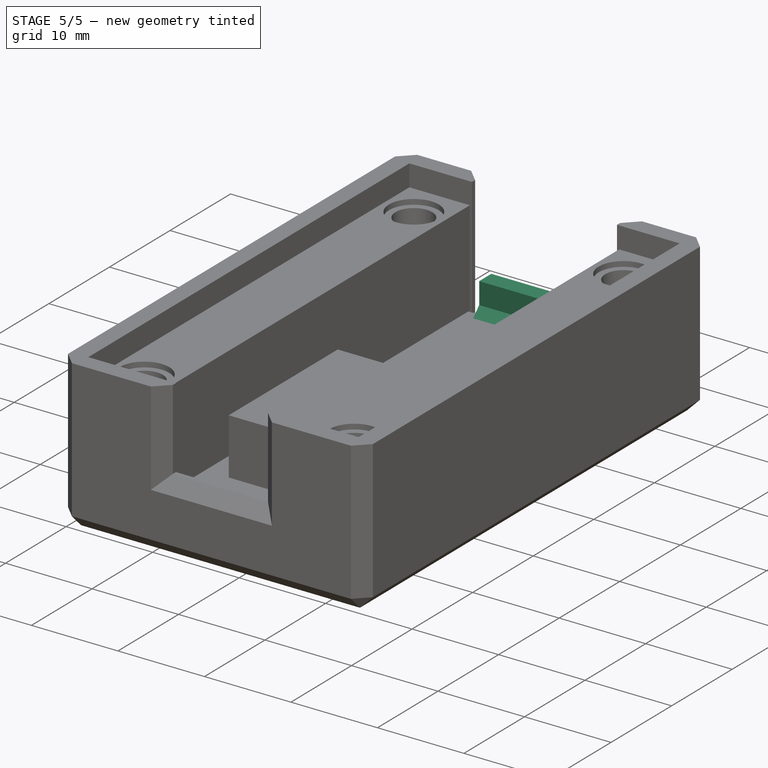
[diagram: stage 5 of 5 — iso view after this stage's code; geometry added in this stage tinted green]
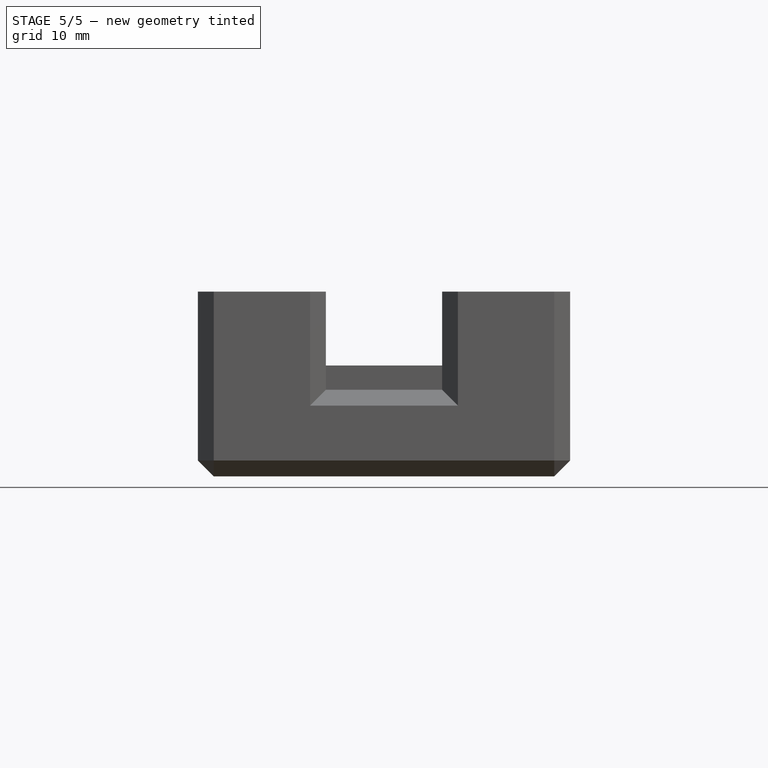
[diagram: stage 5 of 5 — front view after this stage's code; geometry added in this stage tinted green]
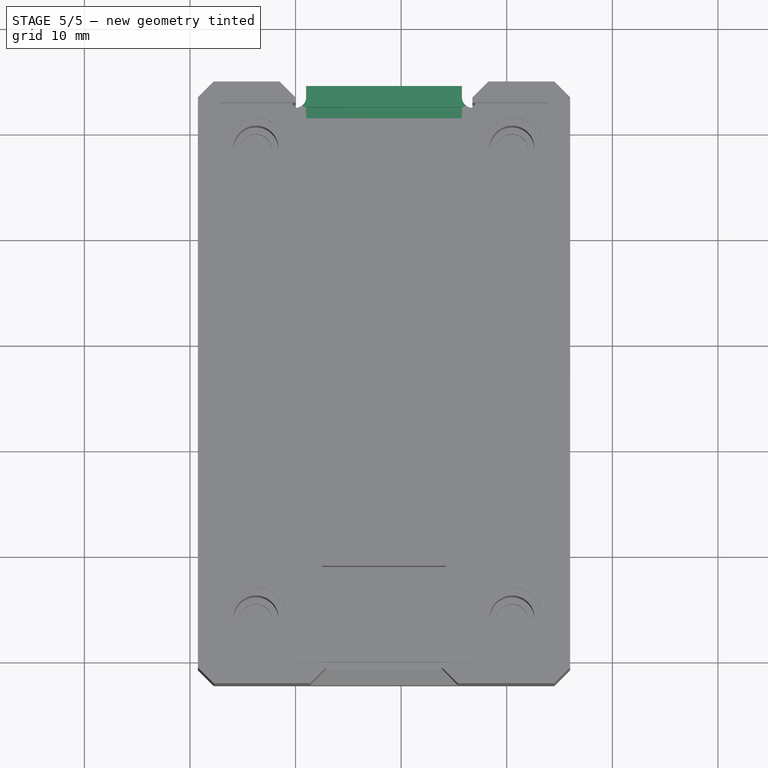
[diagram: stage 5 of 5 — top view after this stage's code; geometry added in this stage tinted green]
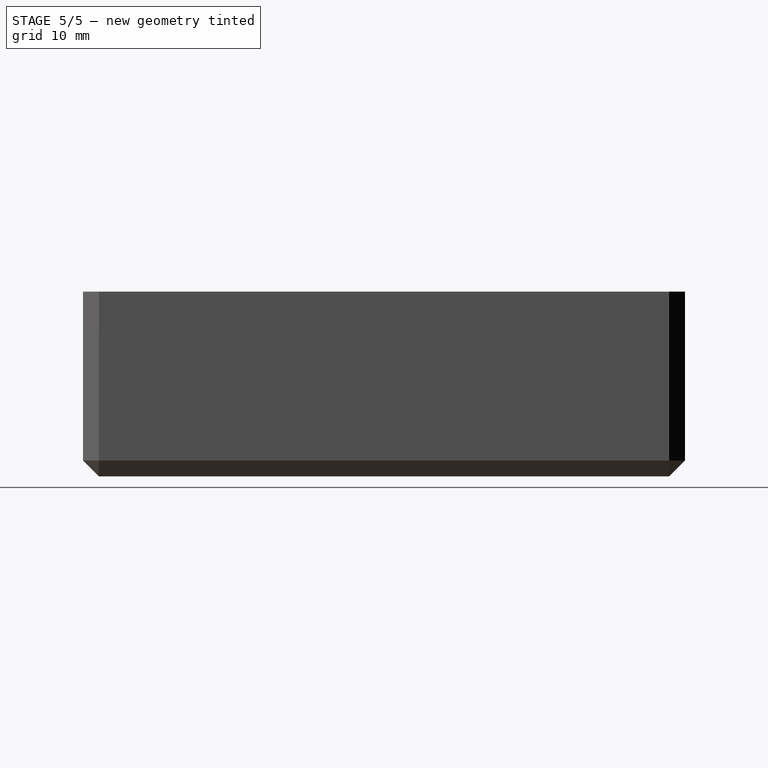
[diagram: stage 5 of 5 — right view after this stage's code; geometry added in this stage tinted green]
FEATURE [App::Point] Origin002  label="Origin"
  Role = Origin
FEATURE [App::Point] Origin003  label="Origin"
  Role = Origin
FEATURE [Sketcher::SketchObject] Sketch011
  ArcFitTolerance = 1e-06
  AttachmentSupport = -> [Origin001]
  ExternalGeometry = -> [Pad005]
  ExternalTypes = [0]
  FullyConstrained = true
  MakeInternals = false
  MapMode = 5
  _ExternalGeoVersion = 1
  expr: Constraints[4] = Spreadsheet.wall_thickness
  expr: Constraints[5] = Spreadsheet.board_width - 2 mm
  sketch-geometry (5):
    g0: LineSegment StartX=1 StartY=54.5 StartZ=0 EndX=15.75 EndY=54.5 EndZ=0
    g1: LineSegment StartX=15.75 StartY=54.5 StartZ=0 EndX=15.75 EndY=52.5 EndZ=0
    g2: LineSegment StartX=15.75 StartY=52.5 StartZ=0 EndX=1 EndY=52.5 EndZ=0
    g3: LineSegment StartX=1 StartY=52.5 StartZ=0 EndX=1 EndY=54.5 EndZ=0
    g4: GeomPoint X=8.375 Y=52.5 Z=0
  constraints (12):
    c: Coincident(g0,g1)
    c: Coincident(g1,g2)
    c: Coincident(g2,g3)
    c: Coincident(g3,g0)
    c: Distance(g1,g1) = 2
    c: DistanceX(g2,g2) = 14.75
    c: Symmetric(g2,g2,g4)
    c: Symmetric(g-4,g-5,g4)
    c: PointOnObject(g2,g-3)
    c: Horizontal(g0)
    c: Vertical(g3)
    c: Vertical(g1)
FEATURE [PartDesign::Pad] Pad006
  BaseFeature = -> Pad005
  Direction = (0,0,1)
  Length = 5.5
  Length2 = 10
  Profile = -> Sketch011
  ReferenceAxis = -> Sketch011 [N_Axis]
  Refine = true
  SideType = 0
  Suppressed = false
  Type = 0
  Type2 = 0
  expr: Length = Spreadsheet.wall_thickness + 3.5 mm
FEATURE [PartDesign::Fillet] Fillet
  Base = -> Pad006 [Edge26,Edge2]
  BaseFeature = -> Pad006
  Radius = 1
  Refine = true
  SupportTransform = false
  Suppressed = false
  UseAllEdges = false
FEATURE [PartDesign::Chamfer] Chamfer001
  Angle = 45
  Base = -> Fillet [Edge24]
  BaseFeature = -> Fillet
  ChamferType = 0
  FlipDirection = false
  Refine = true
  Size = 1
  Size2 = 1
  SupportTransform = false
  Suppressed = false
  UseAllEdges = false
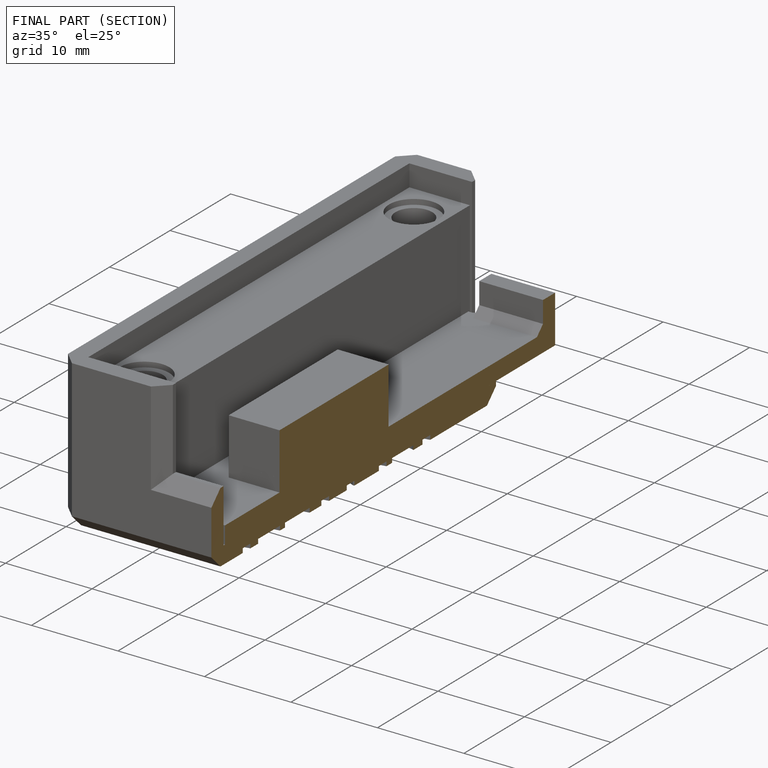
[diagram: finished part — half-section view (interior)]
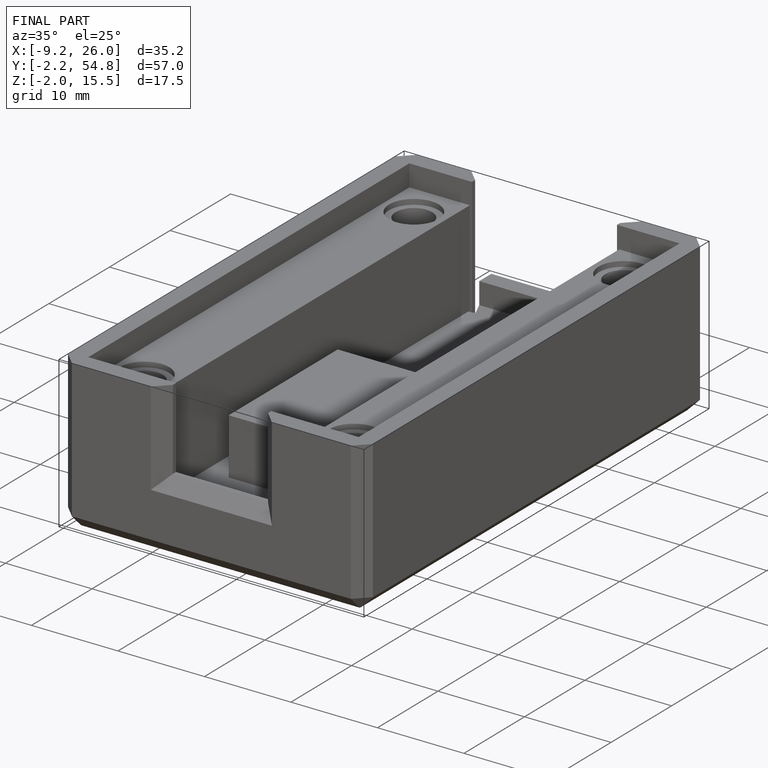
[diagram: finished part — iso view with bounding-box wireframe]
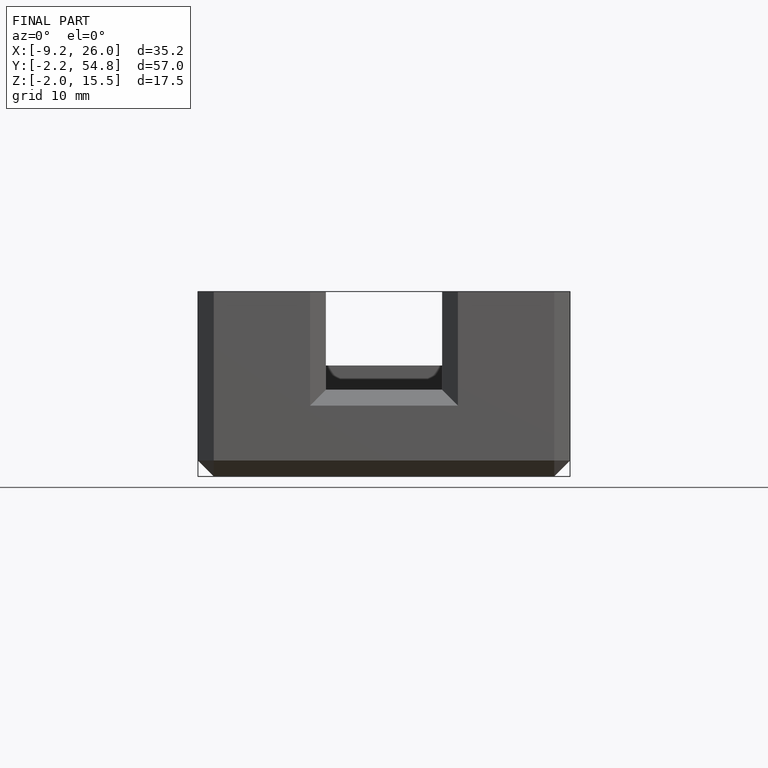
[diagram: finished part — front view with bounding-box wireframe]
